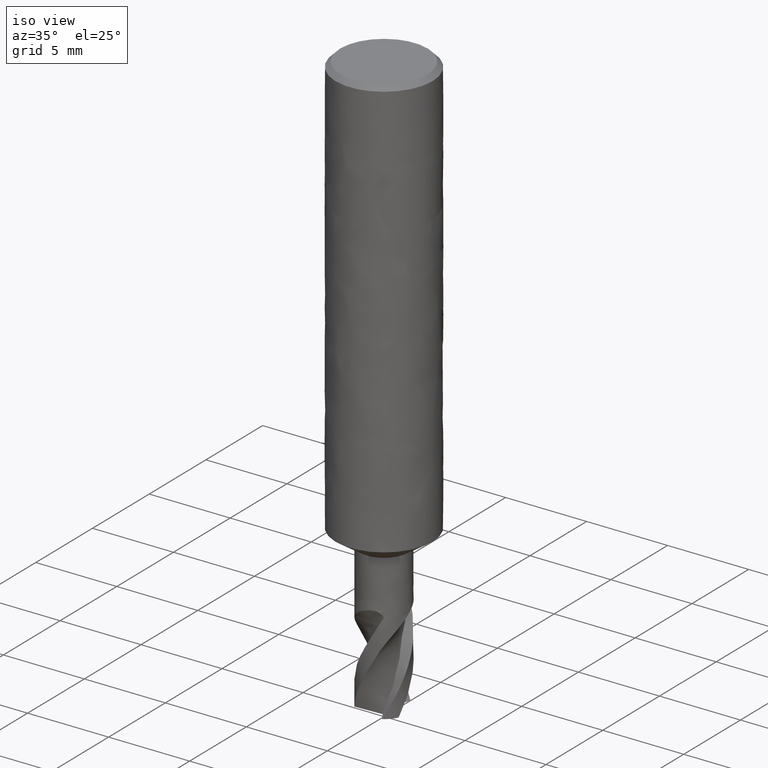
[diagram: clean part render]
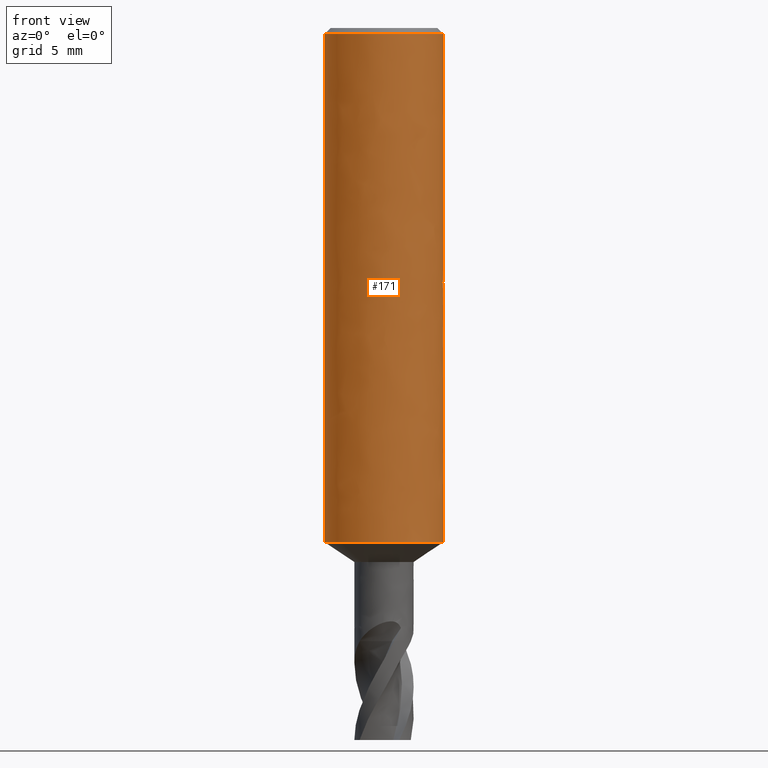
[diagram: tour spotlight — one face highlighted and labeled with its STEP entity id]
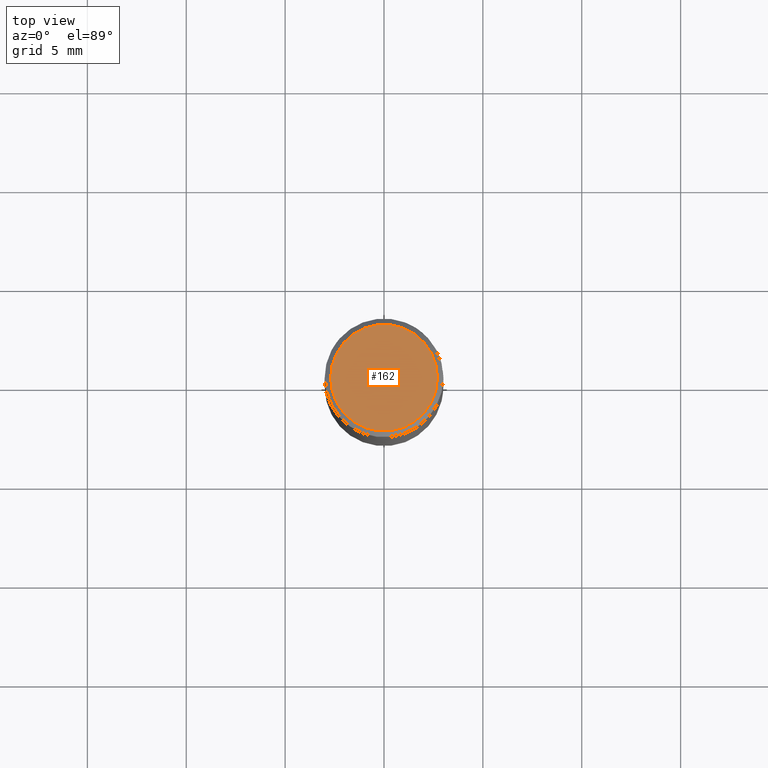
[diagram: tour spotlight — one face highlighted and labeled with its STEP entity id]
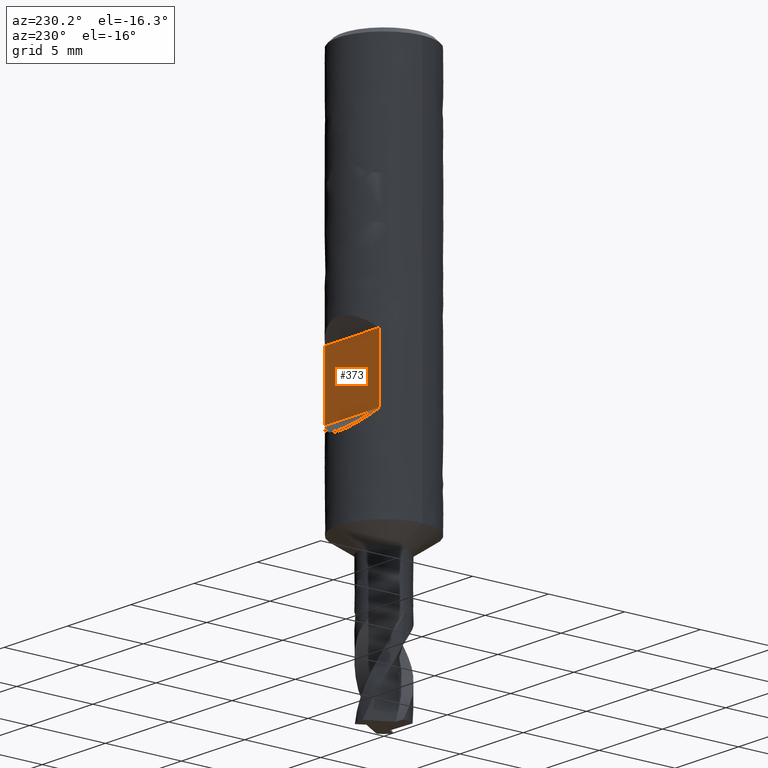
[diagram: tour spotlight — one face highlighted and labeled with its STEP entity id]
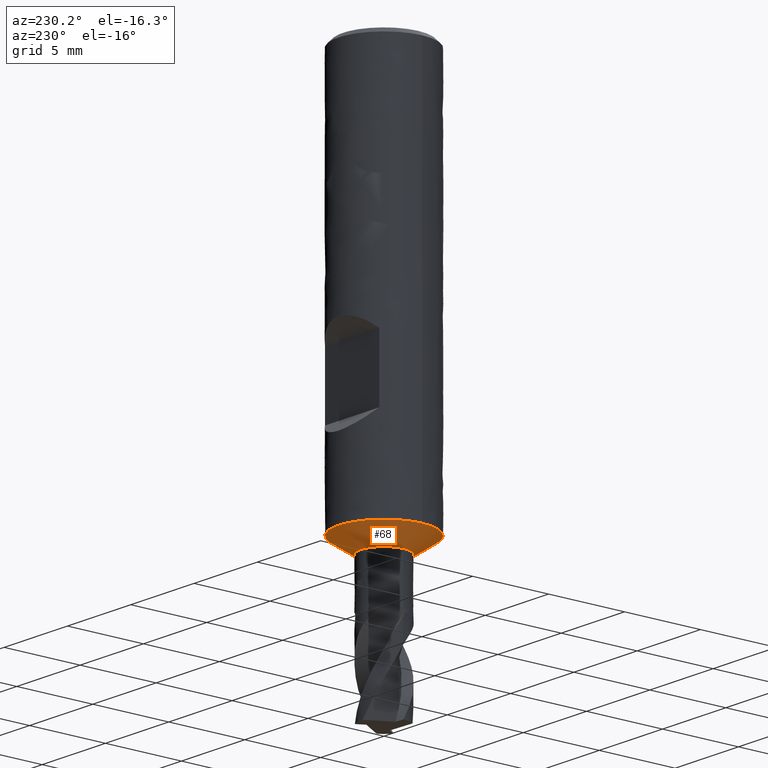
[diagram: tour spotlight — one face highlighted and labeled with its STEP entity id]
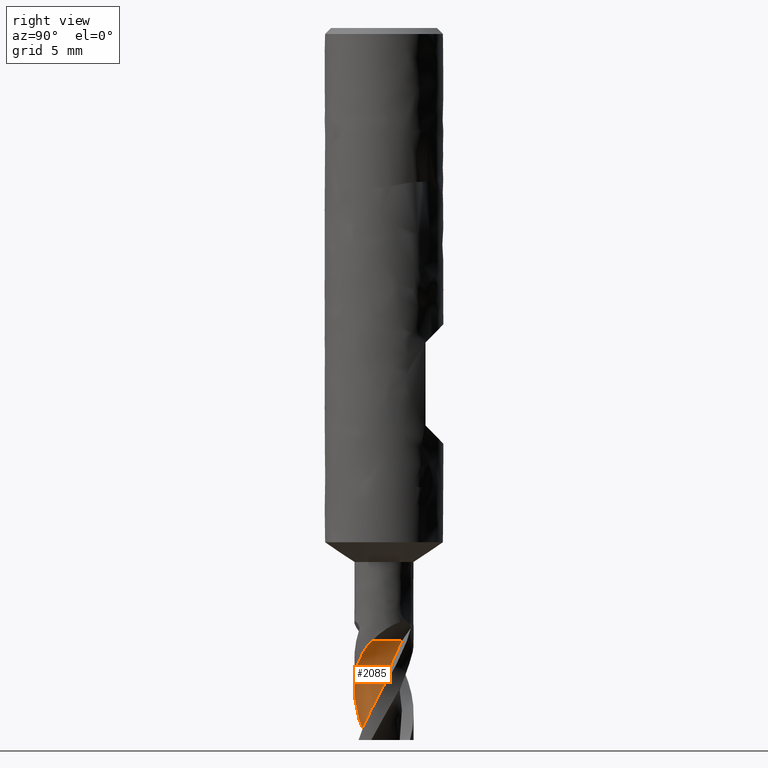
[diagram: tour spotlight — one face highlighted and labeled with its STEP entity id]
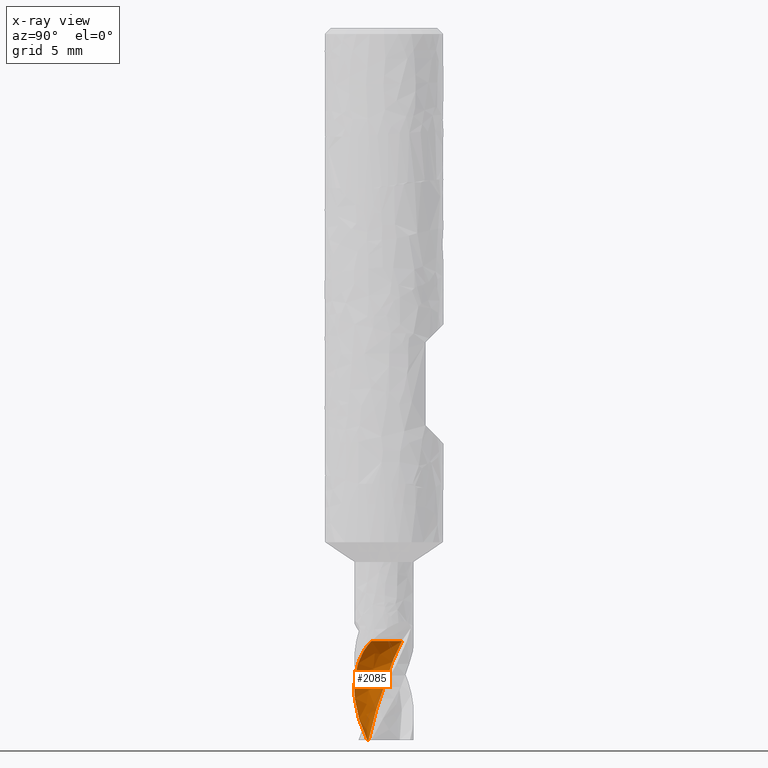
[diagram: x-ray of the same camera — body ghosted, this tour face saturated]
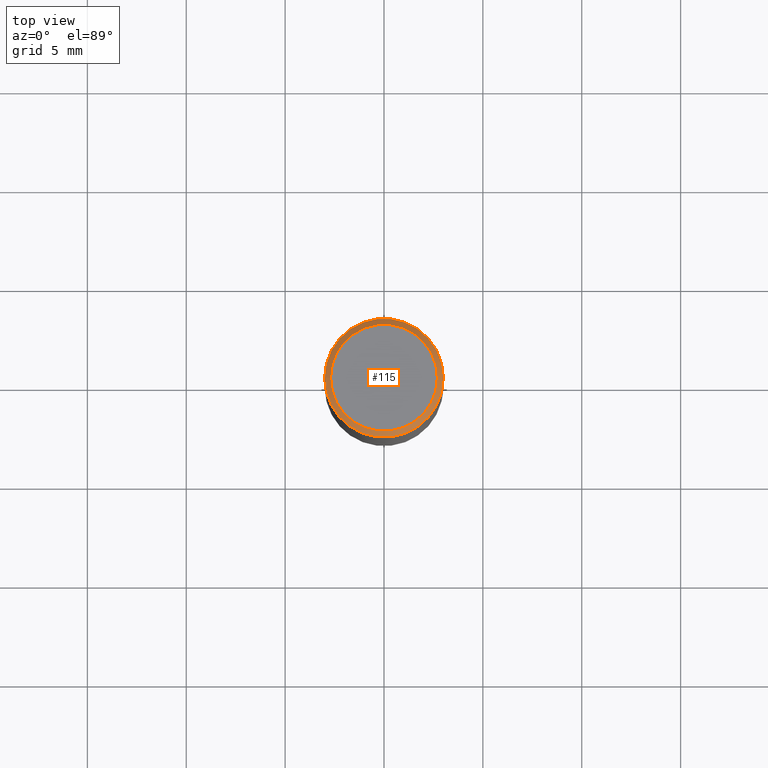
[diagram: tour spotlight — one face highlighted and labeled with its STEP entity id]
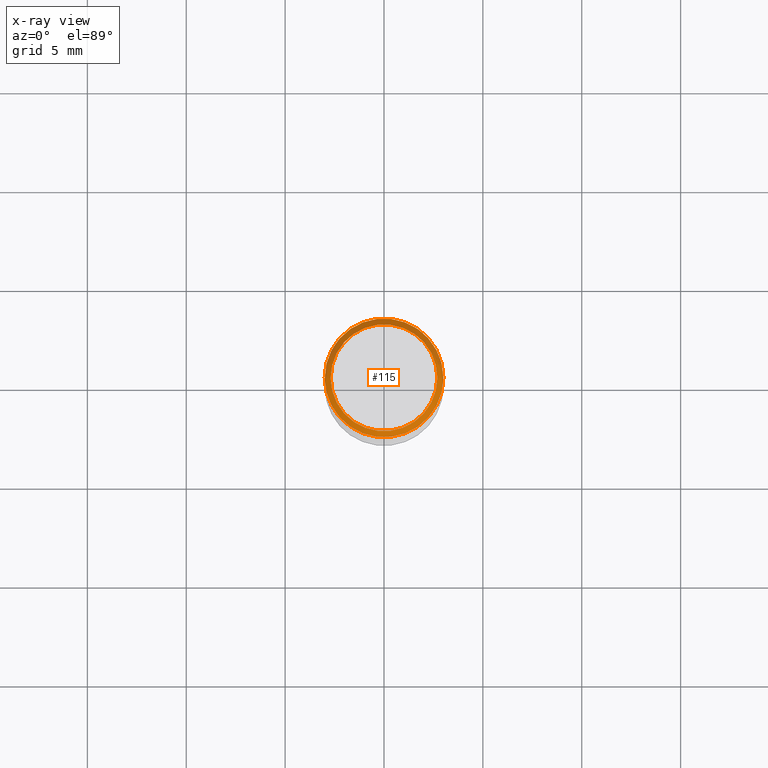
[diagram: x-ray of the same camera — body ghosted, this tour face saturated]
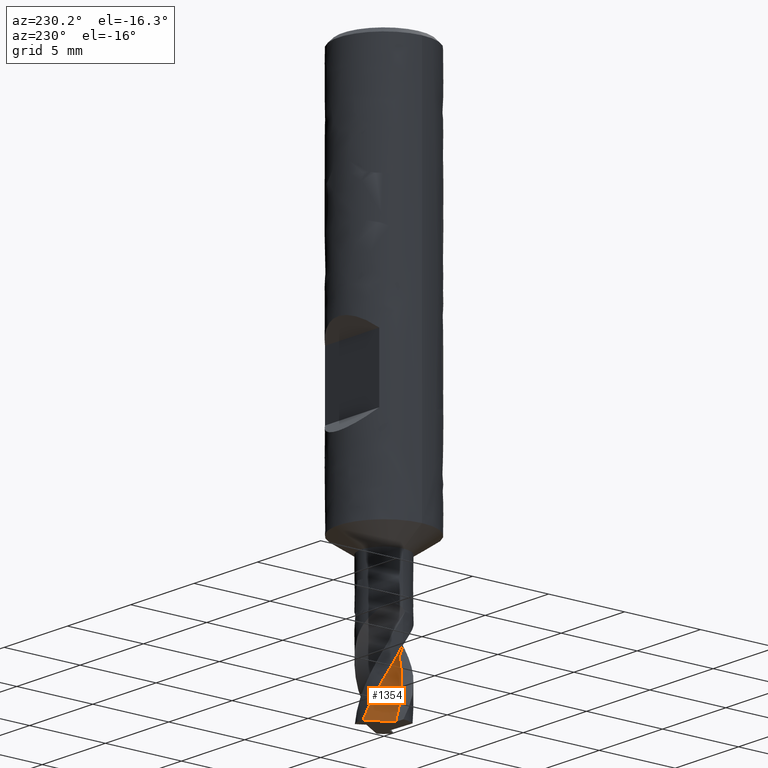
[diagram: tour spotlight — one face highlighted and labeled with its STEP entity id]
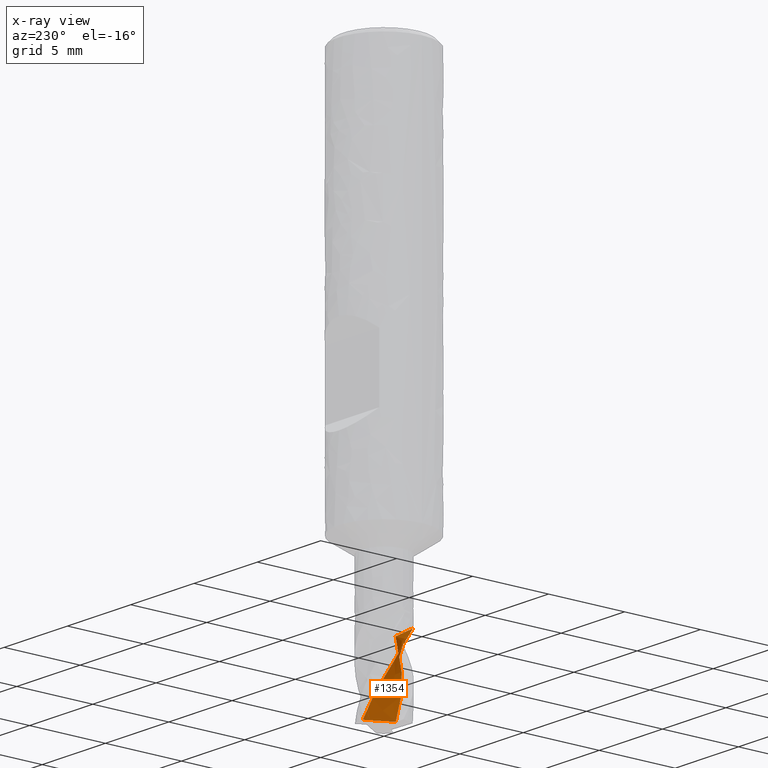
[diagram: x-ray of the same camera — body ghosted, this tour face saturated]
A machine part: a face-by-face anatomy tour. The part has 28 B-rep faces; the first image is the clean iso view, then the 7 largest visible faces are spotlighted one at a time (largest first), each with its STEP entity span.

Face 1 — front view, entity #171. In plain terms, the highlighted face is a freeform B-spline surface patch.
Definition (entity closure, byte-faithful):
#73 = VERTEX_POINT('', #74);
#74 = CARTESIAN_POINT('', (-3., 1.77573785876366E-15, -26.));
#82 = EDGE_CURVE('', #73, #73, #83, .T.);
#83 = CIRCLE('', #84, 3.);
#84 = AXIS2_PLACEMENT_3D('', #85, #86, #87);
#85 = CARTESIAN_POINT('', (9.74843858730207E-32, 1.59204083889156E-15, -26.));
#86 = DIRECTION('', (3.74939945665464E-33, 6.12323399573677E-17, -1.));
#87 = DIRECTION('', (-1., 6.12323399573677E-17, 0.));
#120 = VERTEX_POINT('', #121);
#121 = CARTESIAN_POINT('', (-3., 2.02066721859313E-16, -0.300000000000001));
#137 = EDGE_CURVE('', #120, #120, #138, .T.);
#138 = CIRCLE('', #139, 3.);
#139 = AXIS2_PLACEMENT_3D('', #140, #141, #142);
#140 = CARTESIAN_POINT('', (1.1248198369964E-33, 1.83697019872102E-17, -0.300000000000001));
#141 = DIRECTION('', (3.74939945665464E-33, 6.12323399573677E-17, -1.));
#142 = DIRECTION('', (-1., 6.12323399573677E-17, 0.));
#171 = ADVANCED_FACE('', (#172, #183), #354, .T.);
#172 = FACE_OUTER_BOUND('', #173, .T.);
#173 = EDGE_LOOP('', (#174, #180, #181, #182));
#174 = ORIENTED_EDGE('', *, *, #175, .T.);
#175 = EDGE_CURVE('', #73, #120, #176, .T.);
#176 = LINE('', #177, #178);
#177 = CARTESIAN_POINT('', (-3., 1.77573785876366E-15, -26.));
#178 = VECTOR('', #179, 25.7);
#179 = DIRECTION('', (0., -1.57367113690435E-15, 25.7));
#180 = ORIENTED_EDGE('', *, *, #137, .T.);
#181 = ORIENTED_EDGE('', *, *, #175, .F.);
#182 = ORIENTED_EDGE('', *, *, #82, .F.);
#183 = FACE_BOUND('', #184, .T.);
#184 = EDGE_LOOP('', (#185, #265, #273, #348));
#185 = ORIENTED_EDGE('', *, *, #186, .F.);
#186 = EDGE_CURVE('', #187, #189, #191, .T.);
#187 = VERTEX_POINT('', #188);
#188 = CARTESIAN_POINT('', (-2.14242852856286, 2.1, -15.9));
#189 = VERTEX_POINT('', #190);
#190 = CARTESIAN_POINT('', (2.14242852856286, 2.1, -15.9));
#191 = B_SPLINE_CURVE_WITH_KNOTS('', 3, (#192, #193, #194, #195, #196, #197, #198, #199, #200, #201, #202, #203, #204, #205, #206, #207, #208, #209, #210, #211, #212, #213, #214, #215, #216, #217, #218, #219, #220, #221, #222, #223, #224, #225, #226, #227, #228, #229, #230, #231, #232, #233, #234, #235, #236, #237, #238, #239, #240, #241, #242, #243, #244, #245, #246, #247, #248, #249, #250, #251, #252, #253, #254, #255, #256, #257, #258, #259, #260, #261, #262, #263, #264), .UNSPECIFIED., .F., .U., (4, 3, 3, 3, 3, 3, 3, 3, 3, 3, 3, 3, 3, 3, 3, 3, 3, 3, 3, 3, 3, 3, 3, 3, 4), (0., 0.226532141220095, 0.522486989651004, 0.818712617000355, 1.01613164123477, 1.21365653787484, 1.41130126070876, 1.60907935009335, 1.8070024900134, 2.00507870652317, 2.20331049885991, 2.40169339368013, 2.59896230886552, 2.79623122405091, 2.99461411887113, 3.19284591120787, 3.39092212771764, 3.58884526763769, 3.78662335702228, 3.98426807985621, 4.18179297649628, 4.37921200073069, 4.67543762808004, 4.97139247651095, 5.19792461773106), .UNSPECIFIED.);
#192 = CARTESIAN_POINT('', (-2.14242852856286, 2.1, -15.9));
#193 = CARTESIAN_POINT('', (-2.09966946167759, 2.14362297369034, -15.8556089394693));
#194 = CARTESIAN_POINT('', (-2.05511554936736, 2.1864112283916, -15.8120672951529));
#195 = CARTESIAN_POINT('', (-2.0087677833036, 2.22819478339795, -15.7695480406738));
#196 = CARTESIAN_POINT('', (-1.94821634893923, 2.28278326528932, -15.71399839793));
#197 = CARTESIAN_POINT('', (-1.88451279376245, 2.33573606973674, -15.6601132326456));
#198 = CARTESIAN_POINT('', (-1.81770907332824, 2.38661553768947, -15.6083379099064));
#199 = CARTESIAN_POINT('', (-1.75084423195189, 2.43754155695695, -15.5565152162052));
#200 = CARTESIAN_POINT('', (-1.68074368663281, 2.48648668451198, -15.5067082925553));
#201 = CARTESIAN_POINT('', (-1.60754910566601, 2.5329401636976, -15.4594368887067));
#202 = CARTESIAN_POINT('', (-1.55876871187291, 2.56389899941746, -15.4279329486004));
#203 = CARTESIAN_POINT('', (-1.50855619382241, 2.59378846644903, -15.3975172059771));
#204 = CARTESIAN_POINT('', (-1.45698599487322, 2.6224400490275, -15.3683611437249));
#205 = CARTESIAN_POINT('', (-1.40538813971895, 2.65110699695378, -15.3391894455812));
#206 = CARTESIAN_POINT('', (-1.35237136818211, 2.67856731294511, -15.311245625015));
#207 = CARTESIAN_POINT('', (-1.2980449081672, 2.70464034880449, -15.2847135109673));
#208 = CARTESIAN_POINT('', (-1.24368549163369, 2.7307292015695, -15.2581653015195));
#209 = CARTESIAN_POINT('', (-1.1879435465153, 2.75546251726231, -15.2329964966177));
#210 = CARTESIAN_POINT('', (-1.13097137564118, 2.77865142604832, -15.2093992916021));
#211 = CARTESIAN_POINT('', (-1.07396076113039, 2.80185598222798, -15.1857861636831));
#212 = CARTESIAN_POINT('', (-1.01563414958426, 2.82354738172838, -15.1637128351876));
#213 = CARTESIAN_POINT('', (-0.956194799697475, 2.84353503671602, -15.143373249704));
#214 = CARTESIAN_POINT('', (-0.896711856966026, 2.86353735065839, -15.1230187471597));
#215 = CARTESIAN_POINT('', (-0.836016614422429, 2.88186535336629, -15.1043680361057));
#216 = CARTESIAN_POINT('', (-0.774369168024398, 2.89833614192924, -15.087607239896));
#217 = CARTESIAN_POINT('', (-0.712674042608828, 2.91481966923584, -15.0708334806465));
#218 = CARTESIAN_POINT('', (-0.649913305064568, 2.92947198918526, -15.0559231715418));
#219 = CARTESIAN_POINT('', (-0.586405693294031, 2.94212990244693, -15.0430423854271));
#220 = CARTESIAN_POINT('', (-0.522848200475711, 2.95479775766609, -15.030151482303));
#221 = CARTESIAN_POINT('', (-0.458417641638564, 2.96549204170255, -15.0192688998049));
#222 = CARTESIAN_POINT('', (-0.393487032405319, 2.97408270821927, -15.010526974047));
#223 = CARTESIAN_POINT('', (-0.328506929716998, 2.98267992298454, -15.0017783847429));
#224 = CARTESIAN_POINT('', (-0.262890170542849, 2.98918754384691, -14.9951561816426));
#225 = CARTESIAN_POINT('', (-0.197052250671397, 2.99352140638837, -14.9907460110803));
#226 = CARTESIAN_POINT('', (-0.131584030526338, 2.99783093298788, -14.9863606049525));
#227 = CARTESIAN_POINT('', (-0.0657563050618007, 3., -14.9841533463251));
#228 = CARTESIAN_POINT('', (-3.46086516886445E-15, 3., -14.9841533463251));
#229 = CARTESIAN_POINT('', (0.0657563050617912, 3., -14.9841533463251));
#230 = CARTESIAN_POINT('', (0.131584030526326, 2.99783093298788, -14.9863606049525));
#231 = CARTESIAN_POINT('', (0.197052250671382, 2.99352140638837, -14.9907460110803));
#232 = CARTESIAN_POINT('', (0.262890170542835, 2.98918754384691, -14.9951561816426));
#233 = CARTESIAN_POINT('', (0.328506929716983, 2.98267992298454, -15.0017783847429));
#234 = CARTESIAN_POINT('', (0.393487032405305, 2.97408270821927, -15.010526974047));
#235 = CARTESIAN_POINT('', (0.45841764163855, 2.96549204170255, -15.0192688998049));
#236 = CARTESIAN_POINT('', (0.522848200475697, 2.95479775766609, -15.030151482303));
#237 = CARTESIAN_POINT('', (0.586405693294018, 2.94212990244693, -15.0430423854271));
#238 = CARTESIAN_POINT('', (0.649913305064555, 2.92947198918526, -15.0559231715418));
#239 = CARTESIAN_POINT('', (0.712674042608815, 2.91481966923585, -15.0708334806465));
#240 = CARTESIAN_POINT('', (0.774369168024384, 2.89833614192924, -15.087607239896));
#241 = CARTESIAN_POINT('', (0.836016614422415, 2.88186535336629, -15.1043680361057));
#242 = CARTESIAN_POINT('', (0.896711856966013, 2.86353735065839, -15.1230187471597));
#243 = CARTESIAN_POINT('', (0.956194799697462, 2.84353503671602, -15.143373249704));
#244 = CARTESIAN_POINT('', (1.01563414958425, 2.82354738172838, -15.1637128351876));
#245 = CARTESIAN_POINT('', (1.07396076113038, 2.80185598222798, -15.1857861636831));
#246 = CARTESIAN_POINT('', (1.13097137564117, 2.77865142604833, -15.2093992916021));
#247 = CARTESIAN_POINT('', (1.18794354651528, 2.75546251726231, -15.2329964966177));
#248 = CARTESIAN_POINT('', (1.24368549163367, 2.73072920156951, -15.2581653015195));
#249 = CARTESIAN_POINT('', (1.29804490816718, 2.7046403488045, -15.2847135109673));
#250 = CARTESIAN_POINT('', (1.3523713681821, 2.67856731294512, -15.311245625015));
#251 = CARTESIAN_POINT('', (1.40538813971894, 2.65110699695379, -15.3391894455811));
#252 = CARTESIAN_POINT('', (1.45698599487321, 2.6224400490275, -15.3683611437249));
#253 = CARTESIAN_POINT('', (1.5085561938224, 2.59378846644904, -15.3975172059771));
#254 = CARTESIAN_POINT('', (1.5587687118729, 2.56389899941747, -15.4279329486004));
#255 = CARTESIAN_POINT('', (1.60754910566601, 2.53294016369761, -15.4594368887067));
#256 = CARTESIAN_POINT('', (1.6807436866328, 2.48648668451198, -15.5067082925553));
#257 = CARTESIAN_POINT('', (1.75084423195188, 2.43754155695696, -15.5565152162052));
#258 = CARTESIAN_POINT('', (1.81770907332823, 2.38661553768948, -15.6083379099064));
#259 = CARTESIAN_POINT('', (1.88451279376244, 2.33573606973675, -15.6601132326456));
#260 = CARTESIAN_POINT('', (1.94821634893922, 2.28278326528933, -15.71399839793));
#261 = CARTESIAN_POINT('', (2.00876778330359, 2.22819478339795, -15.7695480406737));
#262 = CARTESIAN_POINT('', (2.05511554936735, 2.1864112283916, -15.8120672951529));
#263 = CARTESIAN_POINT('', (2.09966946167759, 2.14362297369035, -15.8556089394693));
#264 = CARTESIAN_POINT('', (2.14242852856286, 2.1, -15.9));
#265 = ORIENTED_EDGE('', *, *, #266, .T.);
#266 = EDGE_CURVE('', #187, #267, #269, .T.);
#267 = VERTEX_POINT('', #268);
#268 = CARTESIAN_POINT('', (-2.14242852856286, 2.1, -20.1));
#269 = LINE('', #270, #271);
#270 = CARTESIAN_POINT('', (-2.14242852856286, 2.1, -15.9));
#271 = VECTOR('', #272, 4.2);
#272 = DIRECTION('', (-4.44089209850063E-16, -4.44089209850063E-16, -4.2));
#273 = ORIENTED_EDGE('', *, *, #274, .T.);
#274 = EDGE_CURVE('', #267, #275, #277, .T.);
#275 = VERTEX_POINT('', #276);
#276 = CARTESIAN_POINT('', (2.14242852856285, 2.1, -20.1));
#277 = B_SPLINE_CURVE_WITH_KNOTS('', 3, (#278, #279, #280, #281, #282, #283, #284, #285, #286, #287, #288, #289, #290, #291, #292, #293, #294, #295, #296, #297, #298, #299, #300, #301, #302, #303, #304, #305, #306, #307, #308, #309, #310, #311, #312, #313, #314, #315, #316, #317, #318, #319, #320, #321, #322, #323, #324, #325, #326, #327, #328, #329, #330, #331, #332, #333, #334, #335, #336, #337, #338, #339, #340, #341, #342, #343, #344, #345, #346, #347), .UNSPECIFIED., .F., .U., (4, 3, 3, 3, 3, 3, 3, 3, 3, 3, 3, 3, 3, 3, 3, 3, 3, 3, 3, 3, 3, 3, 3, 4), (0., 0.295660747419768, 0.591176839852674, 0.886518626925895, 1.18164841836716, 1.47652016794506, 1.67307726230278, 1.86952243409268, 2.06584587187348, 2.26204020012183, 2.39294997035299, 2.5987955185311, 2.79606443371649, 2.99444732853671, 3.19267912087346, 3.39075533738323, 3.58867847730327, 3.78645656668787, 3.98410128952179, 4.18162618616186, 4.37904521039627, 4.67527083774562, 4.97122568617653, 5.19775782739663), .UNSPECIFIED.);
#278 = CARTESIAN_POINT('', (-2.14242852856286, 2.1, -20.1));
#279 = CARTESIAN_POINT('', (-2.08662109388194, 2.15693497150777, -20.157937447925));
#280 = CARTESIAN_POINT('', (-2.02774367313634, 2.21245994000831, -20.2144400663657));
#281 = CARTESIAN_POINT('', (-1.96580397010841, 2.26618947820047, -20.269115641651));
#282 = CARTESIAN_POINT('', (-1.90389457170158, 2.31989272867703, -20.3237644663626));
#283 = CARTESIAN_POINT('', (-1.8388216153995, 2.37189080900499, -20.3766780973248));
#284 = CARTESIAN_POINT('', (-1.77065397516674, 2.42173171516323, -20.4273965719039));
#285 = CARTESIAN_POINT('', (-1.70252654250763, 2.47154322347377, -20.4780851310158));
#286 = CARTESIAN_POINT('', (-1.63117078258686, 2.51929762113425, -20.5266803591222));
#287 = CARTESIAN_POINT('', (-1.55675381487312, 2.56447217958794, -20.572650323779));
#288 = CARTESIAN_POINT('', (-1.48239026348173, 2.60961431185107, -20.6185872913044));
#289 = CARTESIAN_POINT('', (-1.40478985624159, 2.6522855246488, -20.6620098329141));
#290 = CARTESIAN_POINT('', (-1.32426732289553, 2.69189822569709, -20.7023200103564));
#291 = CARTESIAN_POINT('', (-1.24381519309784, 2.73147629203384, -20.7425949432603));
#292 = CARTESIAN_POINT('', (-1.16021288035591, 2.76811040114363, -20.7798740835253));
#293 = CARTESIAN_POINT('', (-1.07398043712975, 2.80117225829876, -20.8135180737918));
#294 = CARTESIAN_POINT('', (-1.01649918128153, 2.82321079737816, -20.8359446540893));
#295 = CARTESIAN_POINT('', (-0.957748596561568, 2.84370285567261, -20.856797524107));
#296 = CARTESIAN_POINT('', (-0.897945836518629, 2.86246279882885, -20.8758877809545));
#297 = CARTESIAN_POINT('', (-0.838177129067324, 2.88121205979111, -20.8949671675225));
#298 = CARTESIAN_POINT('', (-0.777257254947386, 2.89826163823775, -20.9123169445968));
#299 = CARTESIAN_POINT('', (-0.715458762567487, 2.91343761887321, -20.9277601346871));
#300 = CARTESIAN_POINT('', (-0.653698565749474, 2.92860419519017, -20.9431937548733));
#301 = CARTESIAN_POINT('', (-0.5909476803555, 2.94192632660259, -20.9567504542887));
#302 = CARTESIAN_POINT('', (-0.527533495262698, 2.9532538684265, -20.9682774445929));
#303 = CARTESIAN_POINT('', (-0.464161013676519, 2.96457396084119, -20.9797968543232));
#304 = CARTESIAN_POINT('', (-0.400001379736571, 2.97392352783086, -20.989311042813));
#305 = CARTESIAN_POINT('', (-0.335429955765132, 2.98118881400953, -20.9967042517405));
#306 = CARTESIAN_POINT('', (-0.292344967778632, 2.9860365430586, -21.0016373366599));
#307 = CARTESIAN_POINT('', (-0.249027925527354, 2.98996321515988, -21.0056331472199));
#308 = CARTESIAN_POINT('', (-0.205599414331939, 2.99294652154468, -21.0086689818526));
#309 = CARTESIAN_POINT('', (-0.13731141964832, 2.99763754145158, -21.0134425983904));
#310 = CARTESIAN_POINT('', (-0.0686151827260331, 3., -21.0158466536749));
#311 = CARTESIAN_POINT('', (3.42251758381152E-15, 3., -21.0158466536749));
#312 = CARTESIAN_POINT('', (0.0657563050618005, 3., -21.0158466536749));
#313 = CARTESIAN_POINT('', (0.131584030526337, 2.99783093298788, -21.0136393950475));
#314 = CARTESIAN_POINT('', (0.197052250671396, 2.99352140638837, -21.0092539889197));
#315 = CARTESIAN_POINT('', (0.262890170542849, 2.98918754384691, -21.0048438183574));
#316 = CARTESIAN_POINT('', (0.328506929716997, 2.98267992298454, -20.9982216152571));
#317 = CARTESIAN_POINT('', (0.393487032405319, 2.97408270821927, -20.989473025953));
#318 = CARTESIAN_POINT('', (0.458417641638564, 2.96549204170255, -20.9807311001951));
#319 = CARTESIAN_POINT('', (0.522848200475711, 2.95479775766609, -20.969848517697));
#320 = CARTESIAN_POINT('', (0.586405693294031, 2.94212990244693, -20.9569576145729));
#321 = CARTESIAN_POINT('', (0.649913305064568, 2.92947198918526, -20.9440768284582));
#322 = CARTESIAN_POINT('', (0.712674042608828, 2.91481966923584, -20.9291665193535));
#323 = CARTESIAN_POINT('', (0.774369168024397, 2.89833614192924, -20.912392760104));
#324 = CARTESIAN_POINT('', (0.836016614422428, 2.88186535336629, -20.8956319638943));
#325 = CARTESIAN_POINT('', (0.896711856966027, 2.86353735065839, -20.8769812528403));
#326 = CARTESIAN_POINT('', (0.956194799697476, 2.84353503671602, -20.856626750296));
#327 = CARTESIAN_POINT('', (1.01563414958426, 2.82354738172838, -20.8362871648124));
#328 = CARTESIAN_POINT('', (1.07396076113039, 2.80185598222798, -20.8142138363169));
#329 = CARTESIAN_POINT('', (1.13097137564118, 2.77865142604832, -20.7906007083979));
#330 = CARTESIAN_POINT('', (1.1879435465153, 2.75546251726231, -20.7670035033823));
#331 = CARTESIAN_POINT('', (1.24368549163369, 2.7307292015695, -20.7418346984805));
#332 = CARTESIAN_POINT('', (1.2980449081672, 2.70464034880449, -20.7152864890327));
#333 = CARTESIAN_POINT('', (1.35237136818211, 2.67856731294511, -20.688754374985));
#334 = CARTESIAN_POINT('', (1.40538813971895, 2.65110699695378, -20.6608105544188));
#335 = CARTESIAN_POINT('', (1.45698599487322, 2.6224400490275, -20.6316388562751));
#336 = CARTESIAN_POINT('', (1.50855619382241, 2.59378846644903, -20.6024827940229));
#337 = CARTESIAN_POINT('', (1.55876871187291, 2.56389899941746, -20.5720670513996));
#338 = CARTESIAN_POINT('', (1.60754910566601, 2.53294016369761, -20.5405631112933));
#339 = CARTESIAN_POINT('', (1.68074368663281, 2.48648668451198, -20.4932917074447));
#340 = CARTESIAN_POINT('', (1.75084423195189, 2.43754155695695, -20.4434847837948));
#341 = CARTESIAN_POINT('', (1.81770907332824, 2.38661553768947, -20.3916620900936));
#342 = CARTESIAN_POINT('', (1.88451279376245, 2.33573606973674, -20.3398867673544));
#343 = CARTESIAN_POINT('', (1.94821634893922, 2.28278326528932, -20.28600160207));
#344 = CARTESIAN_POINT('', (2.0087677833036, 2.22819478339795, -20.2304519593262));
#345 = CARTESIAN_POINT('', (2.05511554936736, 2.1864112283916, -20.1879327048471));
#346 = CARTESIAN_POINT('', (2.09966946167759, 2.14362297369034, -20.1443910605307));
#347 = CARTESIAN_POINT('', (2.14242852856285, 2.1, -20.1));
#348 = ORIENTED_EDGE('', *, *, #349, .F.);
#349 = EDGE_CURVE('', #189, #275, #350, .T.);
#350 = LINE('', #351, #352);
#351 = CARTESIAN_POINT('', (2.14242852856286, 2.1, -15.9));
#352 = VECTOR('', #353, 4.2);
#353 = DIRECTION('', (-8.88178419700125E-16, 4.44089209850063E-16, -4.2));
#354 = (
   BOUNDED_SURFACE ()
   B_SPLINE_SURFACE (1, 2, ((#355, #356, #357, #358, #359, #360, #361, #362, #363), (#364, #365, #366, #367, #368, #369, #370, #371, #372)), .UNSPECIFIED., .F., .T., .U.)
   B_SPLINE_SURFACE_WITH_KNOTS ((2, 2), (3, 2, 2, 2, 3), (0., 1.), (0., 4.71238898038469, 9.42477796076938, 14.1371669411541, 18.8495559215388), .UNSPECIFIED.)
   GEOMETRIC_REPRESENTATION_ITEM ()
   RATIONAL_B_SPLINE_SURFACE (((1., 0.707106781186548, 1., 0.707106781186548, 1., 0.707106781186548, 1., 0.707106781186548, 1.), (1., 0.707106781186548, 1., 0.707106781186548, 1., 0.707106781186548, 1., 0.707106781186548, 1.)))
   REPRESENTATION_ITEM ('')
   SURFACE ()
);
#355 = CARTESIAN_POINT('', (-3., 1.77573785876366E-15, -26.));
#356 = CARTESIAN_POINT('', (-3., 3., -26.));
#357 = CARTESIAN_POINT('', (9.86076131526265E-32, 3., -26.));
#358 = CARTESIAN_POINT('', (3., 3., -26.));
#359 = CARTESIAN_POINT('', (3., 1.77573785876366E-15, -26.));
#360 = CARTESIAN_POINT('', (3., -3., -26.));
#361 = CARTESIAN_POINT('', (3.67394039744206E-16, -3., -26.));
#362 = CARTESIAN_POINT('', (-3., -3., -26.));
#363 = CARTESIAN_POINT('', (-3., 1.77573785876366E-15, -26.));
#364 = CARTESIAN_POINT('', (-3., 2.02066721859313E-16, -0.300000000000001));
#365 = CARTESIAN_POINT('', (-3., 3., -0.300000000000001));
#366 = CARTESIAN_POINT('', (0., 3., -0.300000000000001));
#367 = CARTESIAN_POINT('', (3., 3., -0.300000000000001));
#368 = CARTESIAN_POINT('', (3., 2.02066721859313E-16, -0.300000000000001));
#369 = CARTESIAN_POINT('', (3., -3., -0.300000000000001));
#370 = CARTESIAN_POINT('', (3.67394039744206E-16, -3., -0.300000000000001));
#371 = CARTESIAN_POINT('', (-3., -3., -0.300000000000001));
#372 = CARTESIAN_POINT('', (-3., 2.02066721859313E-16, -0.300000000000001));

Face 2 — top view, entity #162. In plain terms, the highlighted planar face has unit normal (0, -0, 1).
Definition (entity closure, byte-faithful):
#122 = VERTEX_POINT('', #123);
#123 = CARTESIAN_POINT('', (-2.7, 1.65327317884893E-16, 0.));
#129 = EDGE_CURVE('', #122, #122, #130, .T.);
#130 = CIRCLE('', #131, 2.7);
#131 = AXIS2_PLACEMENT_3D('', #132, #133, #134);
#132 = CARTESIAN_POINT('', (-6.74700668366753E-80, 4.13135006948962E-96, 0.));
#133 = DIRECTION('', (3.74939945665464E-33, 6.12323399573677E-17, -1.));
#134 = DIRECTION('', (-1., 6.12323399573677E-17, 0.));
#162 = ADVANCED_FACE('', (#163), #166, .T.);
#163 = FACE_OUTER_BOUND('', #164, .T.);
#164 = EDGE_LOOP('', (#165));
#165 = ORIENTED_EDGE('', *, *, #129, .F.);
#166 = PLANE('', #167);
#167 = AXIS2_PLACEMENT_3D('', #168, #169, #170);
#168 = CARTESIAN_POINT('', (4.20021428024809, -4.20021428024809, -1.13106398578357E-14));
#169 = DIRECTION('', (1.31581988103722E-15, -1.37705222099459E-15, 1.));
#170 = DIRECTION('', (0., 1., 1.37705222099459E-15));

Face 3 — auxiliary view, entity #373. In plain terms, the highlighted planar face has unit normal (0, 1, 0).
Definition (entity closure, byte-faithful):
#187 = VERTEX_POINT('', #188);
#188 = CARTESIAN_POINT('', (-2.14242852856286, 2.1, -15.9));
#189 = VERTEX_POINT('', #190);
#190 = CARTESIAN_POINT('', (2.14242852856286, 2.1, -15.9));
#266 = EDGE_CURVE('', #187, #267, #269, .T.);
#267 = VERTEX_POINT('', #268);
#268 = CARTESIAN_POINT('', (-2.14242852856286, 2.1, -20.1));
#269 = LINE('', #270, #271);
#270 = CARTESIAN_POINT('', (-2.14242852856286, 2.1, -15.9));
#271 = VECTOR('', #272, 4.2);
#272 = DIRECTION('', (-4.44089209850063E-16, -4.44089209850063E-16, -4.2));
#275 = VERTEX_POINT('', #276);
#276 = CARTESIAN_POINT('', (2.14242852856285, 2.1, -20.1));
#349 = EDGE_CURVE('', #189, #275, #350, .T.);
#350 = LINE('', #351, #352);
#351 = CARTESIAN_POINT('', (2.14242852856286, 2.1, -15.9));
#352 = VECTOR('', #353, 4.2);
#353 = DIRECTION('', (-8.88178419700125E-16, 4.44089209850063E-16, -4.2));
#373 = ADVANCED_FACE('', (#374), #390, .T.);
#374 = FACE_OUTER_BOUND('', #375, .T.);
#375 = EDGE_LOOP('', (#376, #377, #383, #384));
#376 = ORIENTED_EDGE('', *, *, #349, .T.);
#377 = ORIENTED_EDGE('', *, *, #378, .T.);
#378 = EDGE_CURVE('', #275, #267, #379, .T.);
#379 = LINE('', #380, #381);
#380 = CARTESIAN_POINT('', (2.14242852856285, 2.1, -20.1));
#381 = VECTOR('', #382, 4.28485705712571);
#382 = DIRECTION('', (-4.28485705712571, 4.44089209850063E-16, 0.));
#383 = ORIENTED_EDGE('', *, *, #266, .F.);
#384 = ORIENTED_EDGE('', *, *, #385, .F.);
#385 = EDGE_CURVE('', #189, #187, #386, .T.);
#386 = LINE('', #387, #388);
#387 = CARTESIAN_POINT('', (2.14242852856286, 2.1, -15.9));
#388 = VECTOR('', #389, 4.28485705712571);
#389 = DIRECTION('', (-4.28485705712571, 4.44089209850063E-16, 0.));
#390 = PLANE('', #391);
#391 = AXIS2_PLACEMENT_3D('', #392, #393, #394);
#392 = CARTESIAN_POINT('', (3., 2.1, -20.1));
#393 = DIRECTION('', (0., 1., 1.05735526154777E-16));
#394 = DIRECTION('', (-1., 0., 0.));

Face 4 — auxiliary view, entity #68. In plain terms, the highlighted face is a freeform B-spline surface patch.
Definition (entity closure, byte-faithful):
#68 = ADVANCED_FACE('', (#69), #96, .T.);
#69 = FACE_OUTER_BOUND('', #70, .T.);
#70 = EDGE_LOOP('', (#71, #81, #88, #89));
#71 = ORIENTED_EDGE('', *, *, #72, .F.);
#72 = EDGE_CURVE('', #73, #75, #77, .T.);
#73 = VERTEX_POINT('', #74);
#74 = CARTESIAN_POINT('', (-3., 1.77573785876366E-15, -26.));
#75 = VERTEX_POINT('', #76);
#76 = CARTESIAN_POINT('', (-1.5, 1.74512168878498E-15, -27.));
#77 = LINE('', #78, #79);
#78 = CARTESIAN_POINT('', (-3., 1.77573785876366E-15, -26.));
#79 = VECTOR('', #80, 1.80277563773199);
#80 = DIRECTION('', (1.5, -3.06161699786838E-17, -1.));
#81 = ORIENTED_EDGE('', *, *, #82, .T.);
#82 = EDGE_CURVE('', #73, #73, #83, .T.);
#83 = CIRCLE('', #84, 3.);
#84 = AXIS2_PLACEMENT_3D('', #85, #86, #87);
#85 = CARTESIAN_POINT('', (9.74843858730207E-32, 1.59204083889156E-15, -26.));
#86 = DIRECTION('', (3.74939945665464E-33, 6.12323399573677E-17, -1.));
#87 = DIRECTION('', (-1., 6.12323399573677E-17, 0.));
#88 = ORIENTED_EDGE('', *, *, #72, .T.);
#89 = ORIENTED_EDGE('', *, *, #90, .F.);
#90 = EDGE_CURVE('', #75, #75, #91, .T.);
#91 = CIRCLE('', #92, 1.5);
#92 = AXIS2_PLACEMENT_3D('', #93, #94, #95);
#93 = CARTESIAN_POINT('', (1.01233785329675E-31, 1.65327317884893E-15, -27.));
#94 = DIRECTION('', (3.74939945665464E-33, 6.12323399573677E-17, -1.));
#95 = DIRECTION('', (-1., 6.12323399573677E-17, 0.));
#96 = (
   BOUNDED_SURFACE ()
   B_SPLINE_SURFACE (2, 1, ((#97, #98), (#99, #100), (#101, #102), (#103, #104), (#105, #106), (#107, #108), (#109, #110), (#111, #112), (#113, #114)), .UNSPECIFIED., .T., .F., .U.)
   B_SPLINE_SURFACE_WITH_KNOTS ((3, 2, 2, 2, 3), (2, 2), (0., 0.25, 0.5, 0.75, 1.), (0., 1.), .UNSPECIFIED.)
   GEOMETRIC_REPRESENTATION_ITEM ()
   RATIONAL_B_SPLINE_SURFACE (((1., 1.), (0.707106781186548, 0.707106781186548), (1., 1.), (0.707106781186548, 0.707106781186548), (1., 1.), (0.707106781186548, 0.707106781186548), (1., 1.), (0.707106781186548, 0.707106781186548), (1., 1.)))
   REPRESENTATION_ITEM ('')
   SURFACE ()
);
#97 = CARTESIAN_POINT('', (-3., 1.77573785876366E-15, -26.));
#98 = CARTESIAN_POINT('', (-1.5, 1.74512168878498E-15, -27.));
#99 = CARTESIAN_POINT('', (-3., 3., -26.));
#100 = CARTESIAN_POINT('', (-1.5, 1.5, -27.));
#101 = CARTESIAN_POINT('', (9.86076131526265E-32, 3., -26.));
#102 = CARTESIAN_POINT('', (9.86076131526265E-32, 1.5, -27.));
#103 = CARTESIAN_POINT('', (3., 3., -26.));
#104 = CARTESIAN_POINT('', (1.5, 1.5, -27.));
#105 = CARTESIAN_POINT('', (3., 1.77573785876366E-15, -26.));
#106 = CARTESIAN_POINT('', (1.5, 1.74512168878498E-15, -27.));
#107 = CARTESIAN_POINT('', (3., -3., -26.));
#108 = CARTESIAN_POINT('', (1.5, -1.5, -27.));
#109 = CARTESIAN_POINT('', (3.67394039744206E-16, -3., -26.));
#110 = CARTESIAN_POINT('', (1.83697019872103E-16, -1.5, -27.));
#111 = CARTESIAN_POINT('', (-3., -3., -26.));
#112 = CARTESIAN_POINT('', (-1.5, -1.5, -27.));
#113 = CARTESIAN_POINT('', (-3., 1.77573785876366E-15, -26.));
#114 = CARTESIAN_POINT('', (-1.5, 1.74512168878498E-15, -27.));

Face 5 — right view, entity #2085. An x-ray twin of the same camera follows (body ghosted, this face saturated) — the face is partly hidden behind the body. In plain terms, the highlighted face is a freeform B-spline surface patch.
Definition (entity closure, byte-faithful):
#1107 = VERTEX_POINT('', #1108);
#1108 = CARTESIAN_POINT('', (1.36022073999418, -0.632297033434184, -31.));
#1115 = EDGE_CURVE('', #1107, #1116, #1118, .T.);
#1116 = VERTEX_POINT('', #1117);
#1117 = CARTESIAN_POINT('', (0.750622330840352, 0.903033661847506, -31.));
#1118 = LINE('', #1119, #1120);
#1119 = CARTESIAN_POINT('', (1.3602207399942, -0.632297033434179, -31.));
#1120 = VECTOR('', #1121, 1.65192329250393);
#1121 = DIRECTION('', (-0.609598409153846, 1.53533069528168, 0.));
#2010 = EDGE_CURVE('', #2011, #1116, #2013, .T.);
#2011 = VERTEX_POINT('', #2012);
#2012 = CARTESIAN_POINT('', (0.469311728547661, -0.778240075279371, -36.));
#2013 = B_SPLINE_CURVE_WITH_KNOTS('', 3, (#2014, #2015, #2016, #2017, #2018, #2019, #2020, #2021, #2022, #2023, #2024, #2025, #2026, #2027, #2028, #2029, #2030, #2031, #2032, #2033, #2034), .UNSPECIFIED., .F., .U., (4, 1, 1, 1, 1, 1, 1, 1, 1, 1, 1, 1, 1, 1, 1, 1, 1, 1, 4), (0.0500000000000034, 0.55, 0.825, 1.1, 1.375, 1.65, 1.925, 2.2, 2.475, 2.75, 3.025, 3.3, 3.575, 3.85, 4.125, 4.4, 4.675, 4.95, 5.05), .UNSPECIFIED.);
#2014 = CARTESIAN_POINT('', (0.469311728547662, -0.77824007527937, -36.));
#2015 = CARTESIAN_POINT('', (0.518399261633595, -0.747863413763408, -35.8333333333333));
#2016 = CARTESIAN_POINT('', (0.590031174676566, -0.693784810914283, -35.575));
#2017 = CARTESIAN_POINT('', (0.675341240599906, -0.607777425517128, -35.225));
#2018 = CARTESIAN_POINT('', (0.735167713657381, -0.533777072988802, -34.95));
#2019 = CARTESIAN_POINT('', (0.787199795091738, -0.454088092713696, -34.675));
#2020 = CARTESIAN_POINT('', (0.830907777364409, -0.369497022152006, -34.4));
#2021 = CARTESIAN_POINT('', (0.86587682103869, -0.280842315365529, -34.125));
#2022 = CARTESIAN_POINT('', (0.89162453345234, -0.188978001628962, -33.85));
#2023 = CARTESIAN_POINT('', (0.908300750817427, -0.0948783554325047, -33.575));
#2024 = CARTESIAN_POINT('', (0.914090666986478, 0.000787105619893243, -33.3));
#2025 = CARTESIAN_POINT('', (0.905372296570443, 0.0960949509218717, -33.025));
#2026 = CARTESIAN_POINT('', (0.884464993586387, 0.189313399114684, -32.75));
#2027 = CARTESIAN_POINT('', (0.846946523640303, 0.27640941358627, -32.475));
#2028 = CARTESIAN_POINT('', (0.819694734022636, 0.365364372700542, -32.2));
#2029 = CARTESIAN_POINT('', (0.801401642725588, 0.46243034762928, -31.925));
#2030 = CARTESIAN_POINT('', (0.788481727437673, 0.571841154949706, -31.65));
#2031 = CARTESIAN_POINT('', (0.776644485972274, 0.697424134394736, -31.375));
#2032 = CARTESIAN_POINT('', (0.764046828254482, 0.811282771148307, -31.1583333333333));
#2033 = CARTESIAN_POINT('', (0.753663834839115, 0.883356610289379, -31.0333333333333));
#2034 = CARTESIAN_POINT('', (0.750622330840352, 0.903033661847506, -31.));
#2085 = ADVANCED_FACE('', (#2086), #2189, .T.);
#2086 = FACE_OUTER_BOUND('', #2087, .T.);
#2087 = EDGE_LOOP('', (#2088, #2089, #2182, #2188));
#2088 = ORIENTED_EDGE('', *, *, #1115, .F.);
#2089 = ORIENTED_EDGE('', *, *, #2090, .F.);
#2090 = EDGE_CURVE('', #2091, #1107, #2093, .T.);
#2091 = VERTEX_POINT('', #2092);
#2092 = CARTESIAN_POINT('', (-1.23449274922675, -0.852072562700247, -36.));
#2093 = B_SPLINE_CURVE_WITH_KNOTS('', 3, (#2094, #2095, #2096, #2097, #2098, #2099, #2100, #2101, #2102, #2103, #2104, #2105, #2106, #2107, #2108, #2109, #2110, #2111, #2112, #2113, #2114, #2115, #2116, #2117, #2118, #2119, #2120, #2121, #2122, #2123, #2124, #2125, #2126, #2127, #2128, #2129, #2130, #2131, #2132, #2133, #2134, #2135, #2136, #2137, #2138, #2139, #2140, #2141, #2142, #2143, #2144, #2145, #2146, #2147, #2148, #2149, #2150, #2151, #2152, #2153, #2154, #2155, #2156, #2157, #2158, #2159, #2160, #2161, #2162, #2163, #2164, #2165, #2166, #2167, #2168, #2169, #2170, #2171, #2172, #2173, #2174, #2175, #2176, #2177, #2178, #2179, #2180, #2181), .UNSPECIFIED., .F., .U., (4, 3, 3, 3, 3, 3, 3, 3, 3, 3, 3, 3, 3, 3, 3, 3, 3, 3, 3, 3, 3, 3, 3, 3, 3, 3, 3, 3, 3, 4), (0., 0.443551327460082, 0.886815208005312, 1.32979048099039, 1.62508757993182, 1.92029650650715, 2.21541123460587, 2.51043906458645, 2.80535690891399, 2.89287206786104, 2.93178663359982, 3.12912659365995, 3.32644144242942, 3.45792191154265, 3.58937974088454, 3.7208139609312, 3.8084230957714, 3.89604766281326, 3.98367620830002, 4.07129519907452, 4.26859639564497, 4.4000805600953, 4.59746002001388, 4.79487363237326, 4.99234125961448, 5.18987476159806, 5.38746919370108, 5.58512309232445, 5.78282244638992, 5.93182391505246), .UNSPECIFIED.);
#2094 = CARTESIAN_POINT('', (-1.23449274922675, -0.852072562700249, -36.));
#2095 = CARTESIAN_POINT('', (-1.19303983087478, -0.912130038295546, -35.8714134201064));
#2096 = CARTESIAN_POINT('', (-1.14712450131491, -0.969254419380716, -35.7427846002988));
#2097 = CARTESIAN_POINT('', (-1.09725835859125, -1.02275319334707, -35.6142894551085));
#2098 = CARTESIAN_POINT('', (-1.04742453201229, -1.07621729701357, -35.4858775822044));
#2099 = CARTESIAN_POINT('', (-0.993584738664941, -1.12612379572556, -35.3574274196058));
#2100 = CARTESIAN_POINT('', (-0.936360126938721, -1.1718488437846, -35.2291075320284));
#2101 = CARTESIAN_POINT('', (-0.879172773956775, -1.21754412042499, -35.1008711930803));
#2102 = CARTESIAN_POINT('', (-0.818530174369723, -1.25912291270886, -34.9725963144207));
#2103 = CARTESIAN_POINT('', (-0.755141652331049, -1.29605597290969, -34.8444524319561));
#2104 = CARTESIAN_POINT('', (-0.712885463767593, -1.3206763664112, -34.7590288901772));
#2105 = CARTESIAN_POINT('', (-0.669380627423743, -1.3432528506502, -34.6736002961151));
#2106 = CARTESIAN_POINT('', (-0.624856420414502, -1.36365481477785, -34.5882171268833));
#2107 = CARTESIAN_POINT('', (-0.580345507828723, -1.38405068711029, -34.5028594520979));
#2108 = CARTESIAN_POINT('', (-0.534786889579081, -1.40228655298752, -34.4174981681706));
#2109 = CARTESIAN_POINT('', (-0.488422609596375, -1.41825362838781, -34.3321837400999));
#2110 = CARTESIAN_POINT('', (-0.44207312403264, -1.43421560883995, -34.2468965350852));
#2111 = CARTESIAN_POINT('', (-0.394895394894266, -1.44791794092843, -34.1616025714923));
#2112 = CARTESIAN_POINT('', (-0.347148959734088, -1.45927639594282, -34.076348654278));
#2113 = CARTESIAN_POINT('', (-0.299416583768416, -1.47063150639906, -33.9911198405379));
#2114 = CARTESIAN_POINT('', (-0.25107288789056, -1.47965566708625, -33.9058885457293));
#2115 = CARTESIAN_POINT('', (-0.202344261833272, -1.4862896082877, -33.8207252862388));
#2116 = CARTESIAN_POINT('', (-0.15363380168853, -1.49292107637212, -33.735593775403));
#2117 = CARTESIAN_POINT('', (-0.104539056615796, -1.49715835123536, -33.650461524115));
#2118 = CARTESIAN_POINT('', (-0.0554651758842861, -1.49897418732455, -33.5652998167408));
#2119 = CARTESIAN_POINT('', (-0.0409027865444364, -1.49951302614704, -33.5400285742561));
#2120 = CARTESIAN_POINT('', (-0.026341186406192, -1.49983919531586, -33.5147514471175));
#2121 = CARTESIAN_POINT('', (-0.0117996314296986, -1.49995358884804, -33.489462727888));
#2122 = CARTESIAN_POINT('', (-0.00533357110500454, -1.50000445517431, -33.4782178242765));
#2123 = CARTESIAN_POINT('', (0.00112865298420813, -1.50001347233947, -33.4669704465807));
#2124 = CARTESIAN_POINT('', (0.00758543169413701, -1.49998082028605, -33.4557201433283));
#2125 = CARTESIAN_POINT('', (0.0403284529393835, -1.49981523820143, -33.3986686421139));
#2126 = CARTESIAN_POINT('', (0.0729318840855446, -1.49857540633824, -33.341529901001));
#2127 = CARTESIAN_POINT('', (0.105214316107934, -1.49630543261932, -33.2842612494494));
#2128 = CARTESIAN_POINT('', (0.137492640226716, -1.49403574775202, -33.2269998852701));
#2129 = CARTESIAN_POINT('', (0.169479118790942, -1.49073836927154, -33.1696054187544));
#2130 = CARTESIAN_POINT('', (0.20119085816496, -1.48644617749551, -33.1121437081932));
#2131 = CARTESIAN_POINT('', (0.222321930637684, -1.48358608160432, -33.073854179008));
#2132 = CARTESIAN_POINT('', (0.243337425631322, -1.48028275741953, -33.0355312838727));
#2133 = CARTESIAN_POINT('', (0.264222287505547, -1.47654548957536, -32.9971822840013));
#2134 = CARTESIAN_POINT('', (0.285103553191681, -1.47280886525558, -32.9588398874878));
#2135 = CARTESIAN_POINT('', (0.305842866847965, -1.46863943067573, -32.9204595466357));
#2136 = CARTESIAN_POINT('', (0.326354594489351, -1.4640671701311, -32.882008376939));
#2137 = CARTESIAN_POINT('', (0.346862638307293, -1.459495730746, -32.8435641129171));
#2138 = CARTESIAN_POINT('', (0.367145382709754, -1.45452127117127, -32.8050446019684));
#2139 = CARTESIAN_POINT('', (0.387129406072301, -1.44918281212348, -32.7664236358914));
#2140 = CARTESIAN_POINT('', (0.400450008551606, -1.44562439500509, -32.7406803445059));
#2141 = CARTESIAN_POINT('', (0.413624355059637, -1.44190912103902, -32.7148824417564));
#2142 = CARTESIAN_POINT('', (0.42673481008369, -1.43801856798264, -32.6890793915464));
#2143 = CARTESIAN_POINT('', (0.439847574492331, -1.43412732961188, -32.6632717961725));
#2144 = CARTESIAN_POINT('', (0.452901715052292, -1.43005917779365, -32.6374602880305));
#2145 = CARTESIAN_POINT('', (0.465976706948324, -1.42578599676866, -32.6116939763751));
#2146 = CARTESIAN_POINT('', (0.479052292492198, -1.42151262172713, -32.585926494844));
#2147 = CARTESIAN_POINT('', (0.492149649486556, -1.4170337241178, -32.5602028437693));
#2148 = CARTESIAN_POINT('', (0.505326343025729, -1.41231911657537, -32.5345641425715));
#2149 = CARTESIAN_POINT('', (0.518501599823999, -1.40760502309738, -32.5089282369287));
#2150 = CARTESIAN_POINT('', (0.531758767127445, -1.40265409565929, -32.4833761452602));
#2151 = CARTESIAN_POINT('', (0.545126824090271, -1.39743935312315, -32.4579377640131));
#2152 = CARTESIAN_POINT('', (0.575229129666646, -1.38569675105605, -32.400655398461));
#2153 = CARTESIAN_POINT('', (0.605871059588303, -1.37262304818153, -32.3439061973706));
#2154 = CARTESIAN_POINT('', (0.636889861714538, -1.35807632482318, -32.2877676752867));
#2155 = CARTESIAN_POINT('', (0.657561207609604, -1.34838219321369, -32.2503562109977));
#2156 = CARTESIAN_POINT('', (0.678407811237406, -1.33803004347913, -32.2132043786446));
#2157 = CARTESIAN_POINT('', (0.699371607147727, -1.3269812941848, -32.1763351124587));
#2158 = CARTESIAN_POINT('', (0.730841729286928, -1.31039529557722, -32.1209882508972));
#2159 = CARTESIAN_POINT('', (0.762581574490516, -1.29223392102826, -32.0662391043169));
#2160 = CARTESIAN_POINT('', (0.794311987336948, -1.27242621270266, -32.0121135593916));
#2161 = CARTESIAN_POINT('', (0.826047890476274, -1.25261507706204, -31.9579786491582));
#2162 = CARTESIAN_POINT('', (0.857799689226091, -1.23114145320543, -31.904430352105));
#2163 = CARTESIAN_POINT('', (0.889295015966506, -1.20795462438666, -31.8515091605816));
#2164 = CARTESIAN_POINT('', (0.920798960229959, -1.18476145135585, -31.7985734891452));
#2165 = CARTESIAN_POINT('', (0.95206945928654, -1.15983713298719, -31.7462221174588));
#2166 = CARTESIAN_POINT('', (0.982833705854242, -1.13315396422411, -31.6945096747811));
#2167 = CARTESIAN_POINT('', (1.01360821530323, -1.10646189401783, -31.6427799809525));
#2168 = CARTESIAN_POINT('', (1.04390604075372, -1.07798305501051, -31.5916486777852));
#2169 = CARTESIAN_POINT('', (1.07343547447297, -1.04772910723287, -31.54116888524));
#2170 = CARTESIAN_POINT('', (1.10297401668219, -1.01746582748555, -31.49067352197));
#2171 = CARTESIAN_POINT('', (1.13177105321237, -0.985398329939296, -31.440780102177));
#2172 = CARTESIAN_POINT('', (1.15953607441846, -0.951565075085368, -31.3915603119286));
#2173 = CARTESIAN_POINT('', (1.18730945157457, -0.917721638031887, -31.3423257088658));
#2174 = CARTESIAN_POINT('', (1.21408053377934, -0.882073369317823, -31.2937143741267));
#2175 = CARTESIAN_POINT('', (1.23954631102285, -0.844704056359178, -31.245799726185));
#2176 = CARTESIAN_POINT('', (1.26501794475677, -0.807326149395289, -31.1978740590752));
#2177 = CARTESIAN_POINT('', (1.2892140575138, -0.768181841587592, -31.1505884044868));
#2178 = CARTESIAN_POINT('', (1.31183571834059, -0.727383700728741, -31.1040421502241));
#2179 = CARTESIAN_POINT('', (1.32888514524797, -0.696635077722838, -31.0689613059863));
#2180 = CARTESIAN_POINT('', (1.34506147621417, -0.664908201771682, -31.0342568946108));
#2181 = CARTESIAN_POINT('', (1.36022073999418, -0.632297033434184, -31.));
#2182 = ORIENTED_EDGE('', *, *, #2183, .T.);
#2183 = EDGE_CURVE('', #2091, #2011, #2184, .T.);
#2184 = LINE('', #2185, #2186);
#2185 = CARTESIAN_POINT('', (-1.23449274922675, -0.852072562700247, -36.));
#2186 = VECTOR('', #2187, 1.7054034521728);
#2187 = DIRECTION('', (1.70380447777442, 0.0738324874208761, 0.));
#2188 = ORIENTED_EDGE('', *, *, #2010, .T.);
#2189 = B_SPLINE_SURFACE_WITH_KNOTS('', 3, 1, ((#2190, #2191), (#2192, #2193), (#2194, #2195), (#2196, #2197), (#2198, #2199), (#2200, #2201), (#2202, #2203), (#2204, #2205), (#2206, #2207), (#2208, #2209), (#2210, #2211), (#2212, #2213), (#2214, #2215), (#2216, #2217), (#2218, #2219), (#2220, #2221), (#2222, #2223), (#2224, #2225), (#2226, #2227), (#2228, #2229), (#2230, #2231)), .UNSPECIFIED., .F., .F., .U., (4, 1, 1, 1, 1, 1, 1, 1, 1, 1, 1, 1, 1, 1, 1, 1, 1, 1, 4), (2, 2), (0.0500000000000009, 0.55, 0.825, 1.1, 1.375, 1.65, 1.925, 2.2, 2.475, 2.75, 3.025, 3.3, 3.575, 3.85, 4.125, 4.4, 4.675, 4.95, 5.05000000000006), (0., 0.916116505379321), .UNSPECIFIED.);
#2190 = CARTESIAN_POINT('', (0.469311728547661, -0.778240075279371, -36.));
#2191 = CARTESIAN_POINT('', (-1.26772321867993, -0.853512568434414, -36.));
#2192 = CARTESIAN_POINT('', (0.518399261633595, -0.747863413763409, -35.8333333333333));
#2193 = CARTESIAN_POINT('', (-1.21258655637503, -0.933409283236904, -35.8333333333333));
#2194 = CARTESIAN_POINT('', (0.590031174676566, -0.693784810914283, -35.575));
#2195 = CARTESIAN_POINT('', (-1.11575026997641, -1.04918214043841, -35.575));
#2196 = CARTESIAN_POINT('', (0.675341240599906, -0.607777425517128, -35.225));
#2197 = CARTESIAN_POINT('', (-0.96414072371787, -1.18524979941162, -35.225));
#2198 = CARTESIAN_POINT('', (0.735167713657381, -0.533777072988802, -34.95));
#2199 = CARTESIAN_POINT('', (-0.834835205435985, -1.27952376018712, -34.95));
#2200 = CARTESIAN_POINT('', (0.787199795091738, -0.454088092713696, -34.675));
#2201 = CARTESIAN_POINT('', (-0.696629190713618, -1.36022949249286, -34.675));
#2202 = CARTESIAN_POINT('', (0.830907777364409, -0.369497022152006, -34.4));
#2203 = CARTESIAN_POINT('', (-0.550888139844104, -1.42654330517128, -34.4));
#2204 = CARTESIAN_POINT('', (0.86587682103869, -0.280842315365529, -34.125));
#2205 = CARTESIAN_POINT('', (-0.399055073951628, -1.47783878837824, -34.125));
#2206 = CARTESIAN_POINT('', (0.89162453345234, -0.188978001628962, -33.85));
#2207 = CARTESIAN_POINT('', (-0.242604840061957, -1.51337737996058, -33.85));
#2208 = CARTESIAN_POINT('', (0.908300750817427, -0.0948783554325047, -33.575));
#2209 = CARTESIAN_POINT('', (-0.0831612091156167, -1.53349246241671, -33.575));
#2210 = CARTESIAN_POINT('', (0.914090666986478, 0.000787105619893243, -33.3));
#2211 = CARTESIAN_POINT('', (0.077999100371715, -1.53519214513573, -33.3));
#2212 = CARTESIAN_POINT('', (0.905372296570443, 0.0960949509218717, -33.025));
#2213 = CARTESIAN_POINT('', (0.237341771644837, -1.51255447777044, -33.025));
#2214 = CARTESIAN_POINT('', (0.884464993586387, 0.189313399114684, -32.75));
#2215 = CARTESIAN_POINT('', (0.392152752165458, -1.46962019210403, -32.75));
#2216 = CARTESIAN_POINT('', (0.846946523640303, 0.27640941358627, -32.475));
#2217 = CARTESIAN_POINT('', (0.535287415212216, -1.39930024315661, -32.475));
#2218 = CARTESIAN_POINT('', (0.819694734022636, 0.365364372700542, -32.2));
#2219 = CARTESIAN_POINT('', (0.682405468044285, -1.34606773082751, -32.2));
#2220 = CARTESIAN_POINT('', (0.801401642725588, 0.46243034762928, -31.925));
#2221 = CARTESIAN_POINT('', (0.843897839480954, -1.30720139237705, -31.925));
#2222 = CARTESIAN_POINT('', (0.788481727437673, 0.571841154949706, -31.65));
#2223 = CARTESIAN_POINT('', (1.02657465700045, -1.27632402749692, -31.65));
#2224 = CARTESIAN_POINT('', (0.776644485972274, 0.697424134394736, -31.375));
#2225 = CARTESIAN_POINT('', (1.23650421497089, -1.2459084857944, -31.375));
#2226 = CARTESIAN_POINT('', (0.764046828254481, 0.811282771148318, -31.1583333333333));
#2227 = CARTESIAN_POINT('', (1.42667840283572, -1.21519926814938, -31.1583333333333));
#2228 = CARTESIAN_POINT('', (0.753663834839112, 0.883356610289403, -31.0333333333333));
#2229 = CARTESIAN_POINT('', (1.54685883607595, -1.19171473797255, -31.0333333333333));
#2230 = CARTESIAN_POINT('', (0.750622330840347, 0.903033661847543, -30.9999999999999));
#2231 = CARTESIAN_POINT('', (1.57965223555925, -1.18495580943087, -30.9999999999999));

Face 6 — top view, entity #115. An x-ray twin of the same camera follows (body ghosted, this face saturated) — the face is partly hidden behind the body. In plain terms, the highlighted face is a freeform B-spline surface patch.
Definition (entity closure, byte-faithful):
#115 = ADVANCED_FACE('', (#116), #143, .T.);
#116 = FACE_OUTER_BOUND('', #117, .T.);
#117 = EDGE_LOOP('', (#118, #128, #135, #136));
#118 = ORIENTED_EDGE('', *, *, #119, .T.);
#119 = EDGE_CURVE('', #120, #122, #124, .T.);
#120 = VERTEX_POINT('', #121);
#121 = CARTESIAN_POINT('', (-3., 2.02066721859313E-16, -0.300000000000001));
#122 = VERTEX_POINT('', #123);
#123 = CARTESIAN_POINT('', (-2.7, 1.65327317884893E-16, 0.));
#124 = LINE('', #125, #126);
#125 = CARTESIAN_POINT('', (-3., 2.02066721859313E-16, -0.300000000000001));
#126 = VECTOR('', #127, 0.424264068711929);
#127 = DIRECTION('', (0.3, -3.67394039744205E-17, 0.300000000000001));
#128 = ORIENTED_EDGE('', *, *, #129, .T.);
#129 = EDGE_CURVE('', #122, #122, #130, .T.);
#130 = CIRCLE('', #131, 2.7);
#131 = AXIS2_PLACEMENT_3D('', #132, #133, #134);
#132 = CARTESIAN_POINT('', (-6.74700668366753E-80, 4.13135006948962E-96, 0.));
#133 = DIRECTION('', (3.74939945665464E-33, 6.12323399573677E-17, -1.));
#134 = DIRECTION('', (-1., 6.12323399573677E-17, 0.));
#135 = ORIENTED_EDGE('', *, *, #119, .F.);
#136 = ORIENTED_EDGE('', *, *, #137, .F.);
#137 = EDGE_CURVE('', #120, #120, #138, .T.);
#138 = CIRCLE('', #139, 3.);
#139 = AXIS2_PLACEMENT_3D('', #140, #141, #142);
#140 = CARTESIAN_POINT('', (1.1248198369964E-33, 1.83697019872102E-17, -0.300000000000001));
#141 = DIRECTION('', (3.74939945665464E-33, 6.12323399573677E-17, -1.));
#142 = DIRECTION('', (-1., 6.12323399573677E-17, 0.));
#143 = (
   BOUNDED_SURFACE ()
   B_SPLINE_SURFACE (1, 2, ((#144, #145, #146, #147, #148, #149, #150, #151, #152), (#153, #154, #155, #156, #157, #158, #159, #160, #161)), .UNSPECIFIED., .F., .T., .U.)
   B_SPLINE_SURFACE_WITH_KNOTS ((2, 2), (3, 2, 2, 2, 3), (0., 1.), (0., 0.25, 0.5, 0.75, 1.), .UNSPECIFIED.)
   GEOMETRIC_REPRESENTATION_ITEM ()
   RATIONAL_B_SPLINE_SURFACE (((1., 0.707106781186548, 1., 0.707106781186548, 1., 0.707106781186548, 1., 0.707106781186548, 1.), (1., 0.707106781186548, 1., 0.707106781186548, 1., 0.707106781186548, 1., 0.707106781186548, 1.)))
   REPRESENTATION_ITEM ('')
   SURFACE ()
);
#144 = CARTESIAN_POINT('', (-3., 2.02066721859313E-16, -0.300000000000001));
#145 = CARTESIAN_POINT('', (-3., 3., -0.300000000000001));
#146 = CARTESIAN_POINT('', (0., 3., -0.300000000000001));
#147 = CARTESIAN_POINT('', (3., 3., -0.300000000000001));
#148 = CARTESIAN_POINT('', (3., 2.02066721859313E-16, -0.300000000000001));
#149 = CARTESIAN_POINT('', (3., -3., -0.300000000000001));
#150 = CARTESIAN_POINT('', (3.67394039744206E-16, -3., -0.300000000000001));
#151 = CARTESIAN_POINT('', (-3., -3., -0.300000000000001));
#152 = CARTESIAN_POINT('', (-3., 2.02066721859313E-16, -0.300000000000001));
#153 = CARTESIAN_POINT('', (-2.7, 1.65327317884893E-16, 0.));
#154 = CARTESIAN_POINT('', (-2.7, 2.7, 3.71804099668539E-15));
#155 = CARTESIAN_POINT('', (0., 2.7, 1.65327317884893E-16));
#156 = CARTESIAN_POINT('', (2.7, 2.7, 3.71804099668539E-15));
#157 = CARTESIAN_POINT('', (2.7, 1.65327317884893E-16, 2.02467570659351E-32));
#158 = CARTESIAN_POINT('', (2.7, -2.7, 3.38738636091561E-15));
#159 = CARTESIAN_POINT('', (3.30654635769785E-16, -2.7, -1.65327317884893E-16));
#160 = CARTESIAN_POINT('', (-2.7, -2.7, 3.38738636091561E-15));
#161 = CARTESIAN_POINT('', (-2.7, 1.65327317884893E-16, 0.));

Face 7 — auxiliary view, entity #1354. An x-ray twin of the same camera follows (body ghosted, this face saturated) — the face is partly hidden behind the body. In plain terms, the highlighted face is a freeform B-spline surface patch.
Definition (entity closure, byte-faithful):
#1088 = EDGE_CURVE('', #1089, #1091, #1093, .T.);
#1089 = VERTEX_POINT('', #1090);
#1090 = CARTESIAN_POINT('', (-1.22769566368865, -0.86183719887231, -31.));
#1091 = VERTEX_POINT('', #1092);
#1092 = CARTESIAN_POINT('', (0.406738926212249, -1.10157483807938, -31.));
#1093 = LINE('', #1094, #1095);
#1094 = CARTESIAN_POINT('', (-1.22769566368866, -0.861837198872347, -31.));
#1095 = VECTOR('', #1096, 1.65192329250396);
#1096 = DIRECTION('', (1.63443458990091, -0.239737639207037, 0.));
#1181 = EDGE_CURVE('', #1182, #1091, #1184, .T.);
#1182 = VERTEX_POINT('', #1183);
#1183 = CARTESIAN_POINT('', (-0.908631539708882, -0.0173158415765728, -36.));
#1184 = B_SPLINE_CURVE_WITH_KNOTS('', 3, (#1185, #1186, #1187, #1188, #1189, #1190, #1191, #1192, #1193, #1194, #1195, #1196, #1197, #1198, #1199, #1200, #1201, #1202, #1203, #1204, #1205), .UNSPECIFIED., .F., .U., (4, 1, 1, 1, 1, 1, 1, 1, 1, 1, 1, 1, 1, 1, 1, 1, 1, 1, 4), (0.0500000000000006, 0.55, 0.825, 1.1, 1.375, 1.65, 1.925, 2.2, 2.475, 2.75, 3.025, 3.3, 3.575, 3.85, 4.125, 4.4, 4.675, 4.95, 5.05), .UNSPECIFIED.);
#1185 = CARTESIAN_POINT('', (-0.908631539708882, -0.0173158415765726, -36.));
#1186 = CARTESIAN_POINT('', (-0.906868345696864, -0.0750152229960813, -35.8333333333333));
#1187 = CARTESIAN_POINT('', (-0.895850858349837, -0.164089580837535, -35.575));
#1188 = CARTESIAN_POINT('', (-0.864021310644492, -0.28097395782425, -35.225));
#1189 = CARTESIAN_POINT('', (-0.829848361994696, -0.369785379575012, -34.95));
#1190 = CARTESIAN_POINT('', (-0.786851721391954, -0.454690974046499, -34.675));
#1191 = CARTESIAN_POINT('', (-0.735447696488545, -0.534838732323637, -34.4));
#1192 = CARTESIAN_POINT('', (-0.676154990083536, -0.60945016588485, -34.125));
#1193 = CARTESIAN_POINT('', (-0.609472016893269, -0.67768049579269, -33.85));
#1194 = CARTESIAN_POINT('', (-0.536317441482553, -0.739172346768116, -33.575));
#1195 = CARTESIAN_POINT('', (-0.456363680030952, -0.792019291782496, -33.3));
#1196 = CARTESIAN_POINT('', (-0.369465479611463, -0.832122884173595, -33.025));
#1197 = CARTESIAN_POINT('', (-0.278282283883096, -0.860625852761191, -32.75));
#1198 = CARTESIAN_POINT('', (-0.184095687809284, -0.871681911912552, -32.475));
#1199 = CARTESIAN_POINT('', (-0.0934325386148844, -0.892558649362199, -32.2));
#1200 = CARTESIAN_POINT('', (-0.000224392834969585, -0.925249355049577, -31.925));
#1201 = CARTESIAN_POINT('', (0.100988103397041, -0.968765783855713, -31.65));
#1202 = CARTESIAN_POINT('', (0.215664774612076, -1.02130592175846, -31.375));
#1203 = CARTESIAN_POINT('', (0.320568075339829, -1.06732534852346, -31.1583333333333));
#1204 = CARTESIAN_POINT('', (0.388177347691953, -1.09437033202896, -31.0333333333333));
#1205 = CARTESIAN_POINT('', (0.406738926212249, -1.10157483807938, -31.));
#1354 = ADVANCED_FACE('', (#1355), #1461, .T.);
#1355 = FACE_OUTER_BOUND('', #1356, .T.);
#1356 = EDGE_LOOP('', (#1357, #1358, #1388, #1454, #1460));
#1357 = ORIENTED_EDGE('', *, *, #1088, .F.);
#1358 = ORIENTED_EDGE('', *, *, #1359, .T.);
#1359 = EDGE_CURVE('', #1089, #1360, #1362, .T.);
#1360 = VERTEX_POINT('', #1361);
#1361 = CARTESIAN_POINT('', (-1.5, 2.05668055087664E-15, -32.0881423494282));
#1362 = B_SPLINE_CURVE_WITH_KNOTS('', 3, (#1363, #1364, #1365, #1366, #1367, #1368, #1369, #1370, #1371, #1372, #1373, #1374, #1375, #1376, #1377, #1378, #1379, #1380, #1381, #1382, #1383, #1384, #1385, #1386, #1387), .UNSPECIFIED., .F., .U., (4, 3, 3, 3, 3, 3, 3, 3, 4), (2.08926978266829, 2.19846780765512, 2.39430516578832, 2.59024159407272, 2.78629204118943, 2.98247137720592, 3.17878358268548, 3.37522971807193, 3.51557504970128), .UNSPECIFIED.);
#1363 = CARTESIAN_POINT('', (-1.22769566368865, -0.86183719887231, -31.));
#1364 = CARTESIAN_POINT('', (-1.242838472374, -0.840266117253429, -31.025105693704));
#1365 = CARTESIAN_POINT('', (-1.25729956623697, -0.818455794192102, -31.0504561255635));
#1366 = CARTESIAN_POINT('', (-1.27106533364481, -0.796487864067241, -31.0760065808853));
#1367 = CARTESIAN_POINT('', (-1.29575306515052, -0.757090252253049, -31.1218291465399));
#1368 = CARTESIAN_POINT('', (-1.31825095645157, -0.717111315942275, -31.1683867604282));
#1369 = CARTESIAN_POINT('', (-1.33860300546906, -0.676861871986599, -31.2155793423535));
#1370 = CARTESIAN_POINT('', (-1.35896535017574, -0.636592066652808, -31.2627957980498));
#1371 = CARTESIAN_POINT('', (-1.37720448767873, -0.596002553863304, -31.3107034764941));
#1372 = CARTESIAN_POINT('', (-1.39339149140404, -0.555391890184606, -31.3592259547703));
#1373 = CARTESIAN_POINT('', (-1.40958791462974, -0.514757594450894, -31.4077766691248));
#1374 = CARTESIAN_POINT('', (-1.4237468148964, -0.474061149216651, -31.4569973625967));
#1375 = CARTESIAN_POINT('', (-1.43597239335947, -0.433570392796221, -31.5068137841377));
#1376 = CARTESIAN_POINT('', (-1.44820600925056, -0.393053016650497, -31.5566629563501));
#1377 = CARTESIAN_POINT('', (-1.45851573449687, -0.352701519734722, -31.6071565553441));
#1378 = CARTESIAN_POINT('', (-1.46702801709541, -0.3127759534509, -31.6582422607776));
#1379 = CARTESIAN_POINT('', (-1.4755460649414, -0.272823346151123, -31.70936256583));
#1380 = CARTESIAN_POINT('', (-1.48227261559868, -0.233261505374029, -31.7611197076006));
#1381 = CARTESIAN_POINT('', (-1.48736116774543, -0.19431097931653, -31.8134553237209));
#1382 = CARTESIAN_POINT('', (-1.49245319145073, -0.155333880075183, -31.8658266447236));
#1383 = CARTESIAN_POINT('', (-1.49590881843782, -0.116938318039475, -31.9188193545548));
#1384 = CARTESIAN_POINT('', (-1.49790036699614, -0.0793378254858161, -31.9723929947925));
#1385 = CARTESIAN_POINT('', (-1.49932317199215, -0.0524752273161498, -32.0106671521891));
#1386 = CARTESIAN_POINT('', (-1.5, -0.0260049693023194, -32.049254353202));
#1387 = CARTESIAN_POINT('', (-1.5, 2.08280982323354E-15, -32.0881423494282));
#1388 = ORIENTED_EDGE('', *, *, #1389, .F.);
#1389 = EDGE_CURVE('', #1390, #1360, #1392, .T.);
#1390 = VERTEX_POINT('', #1391);
#1391 = CARTESIAN_POINT('', (-0.120670110552751, 1.49513836296819, -36.));
#1392 = B_SPLINE_CURVE_WITH_KNOTS('', 3, (#1393, #1394, #1395, #1396, #1397, #1398, #1399, #1400, #1401, #1402, #1403, #1404, #1405, #1406, #1407, #1408, #1409, #1410, #1411, #1412, #1413, #1414, #1415, #1416, #1417, #1418, #1419, #1420, #1421, #1422, #1423, #1424, #1425, #1426, #1427, #1428, #1429, #1430, #1431, #1432, #1433, #1434, #1435, #1436, #1437, #1438, #1439, #1440, #1441, #1442, #1443, #1444, #1445, #1446, #1447, #1448, #1449, #1450, #1451, #1452, #1453), .UNSPECIFIED., .F., .U., (4, 3, 3, 3, 3, 3, 3, 3, 3, 3, 3, 3, 3, 3, 3, 3, 3, 3, 3, 3, 4), (0., 0.444663401622154, 0.889003016504776, 1.33303082987607, 1.6287943444351, 1.92447035955844, 2.22005520713324, 2.51555824280497, 2.81095995467019, 3.00789168476608, 3.13919357265407, 3.3360902672323, 3.42364070293419, 3.62049877958879, 3.75176099826033, 3.88305486059799, 4.01437827882142, 4.07274446369322, 4.26963533335835, 4.40090088937635, 4.50553107559148), .UNSPECIFIED.);
#1393 = CARTESIAN_POINT('', (-0.120670110552752, 1.49513836296819, -36.));
#1394 = CARTESIAN_POINT('', (-0.193590237763001, 1.48925310175764, -35.8710910271741));
#1395 = CARTESIAN_POINT('', (-0.266200022021859, 1.47800988325191, -35.7421394036789));
#1396 = CARTESIAN_POINT('', (-0.337637420658066, 1.46150640510789, -35.6133223325581));
#1397 = CARTESIAN_POINT('', (-0.409022801335745, 1.44501494416015, -35.4845990610603));
#1398 = CARTESIAN_POINT('', (-0.479323092583959, 1.42325015298485, -35.355837101401));
#1399 = CARTESIAN_POINT('', (-0.547681339401451, 1.3964401707454, -35.227206248072));
#1400 = CARTESIAN_POINT('', (-0.615991617944328, 1.36964900157753, -35.0986656574455));
#1401 = CARTESIAN_POINT('', (-0.682452202473821, 1.33778433555247, -34.97008615873));
#1402 = CARTESIAN_POINT('', (-0.74624451053817, 1.30119911254659, -34.8416384758859));
#1403 = CARTESIAN_POINT('', (-0.788736076757169, 1.27682997662469, -34.7560804613406));
#1404 = CARTESIAN_POINT('', (-0.830075925188945, 1.25035206134823, -34.6705172995122));
#1405 = CARTESIAN_POINT('', (-0.870035494344714, 1.22189943881661, -34.5849997987173));
#1406 = CARTESIAN_POINT('', (-0.909983241759197, 1.19345523378172, -34.4995075976388));
#1407 = CARTESIAN_POINT('', (-0.948577565638626, 1.16301887690271, -34.4140118084196));
#1408 = CARTESIAN_POINT('', (-0.985602161090083, 1.13074682403028, -34.3285629599554));
#1409 = CARTESIAN_POINT('', (-1.02261534052729, 1.09848472179231, -34.2431404584441));
#1410 = CARTESIAN_POINT('', (-1.05807780545247, 1.0643720608363, -34.1577108235263));
#1411 = CARTESIAN_POINT('', (-1.0917869396806, 1.02859189105441, -34.0723217365346));
#1412 = CARTESIAN_POINT('', (-1.12548674390265, 0.992821624499308, -33.9869562835138));
#1413 = CARTESIAN_POINT('', (-1.1574664150462, 0.955352266355034, -33.9015892678169));
#1414 = CARTESIAN_POINT('', (-1.18755889105058, 0.9163535782037, -33.8162898272919));
#1415 = CARTESIAN_POINT('', (-1.21764104877105, 0.8773682621503, -33.7310196347373));
#1416 = CARTESIAN_POINT('', (-1.24583138027679, 0.836853175400787, -33.6457471572561));
#1417 = CARTESIAN_POINT('', (-1.27190375986425, 0.795148304181796, -33.5604433967384));
#1418 = CARTESIAN_POINT('', (-1.28928510402592, 0.767345444168821, -33.5035750155893));
#1419 = CARTESIAN_POINT('', (-1.30572651287764, 0.739011552401302, -33.4466687835935));
#1420 = CARTESIAN_POINT('', (-1.32114303422647, 0.710338710134029, -33.3896659598906));
#1421 = CARTESIAN_POINT('', (-1.33142181640536, 0.691221433710496, -33.3516600054236));
#1422 = CARTESIAN_POINT('', (-1.34124678364857, 0.671952424108341, -33.3136046296466));
#1423 = CARTESIAN_POINT('', (-1.35060793695881, 0.652578118407188, -33.2754918852796));
#1424 = CARTESIAN_POINT('', (-1.36464566462499, 0.623524943211726, -33.2183390635809));
#1425 = CARTESIAN_POINT('', (-1.37765452670011, 0.594211145161942, -33.1610567822944));
#1426 = CARTESIAN_POINT('', (-1.38967000800899, 0.564639060675306, -33.1037095082256));
#1427 = CARTESIAN_POINT('', (-1.39501271132869, 0.551489785178509, -33.0782099494758));
#1428 = CARTESIAN_POINT('', (-1.40015910812798, 0.538288583778973, -33.0526952411081));
#1429 = CARTESIAN_POINT('', (-1.40511078062207, 0.525036850306366, -33.0271698043681));
#1430 = CARTESIAN_POINT('', (-1.41624466837027, 0.495240188041433, -32.969775591054));
#1431 = CARTESIAN_POINT('', (-1.42639068102894, 0.465181419176161, -32.9123163234256));
#1432 = CARTESIAN_POINT('', (-1.43549155631157, 0.435159731315069, -32.8546815024619));
#1433 = CARTESIAN_POINT('', (-1.44155989296176, 0.415141688754258, -32.8162514080456));
#1434 = CARTESIAN_POINT('', (-1.44716523426041, 0.395140252214016, -32.7777365814183));
#1435 = CARTESIAN_POINT('', (-1.45231028688109, 0.375226372499832, -32.7391181308698));
#1436 = CARTESIAN_POINT('', (-1.45745657983069, 0.355307692103721, -32.7004903704881));
#1437 = CARTESIAN_POINT('', (-1.46215754663097, 0.335438106758956, -32.6617757779154));
#1438 = CARTESIAN_POINT('', (-1.46648312677947, 0.315320850676125, -32.623150301918));
#1439 = CARTESIAN_POINT('', (-1.47080968067, 0.29519906594807, -32.5845161308443));
#1440 = CARTESIAN_POINT('', (-1.47476050557143, 0.27482453059465, -32.5459666002618));
#1441 = CARTESIAN_POINT('', (-1.47834069980057, 0.253985777777719, -32.5076373287571));
#1442 = CARTESIAN_POINT('', (-1.47993190326665, 0.244724074755784, -32.4906020324108));
#1443 = CARTESIAN_POINT('', (-1.48144935542637, 0.235370460923123, -32.4736092768748));
#1444 = CARTESIAN_POINT('', (-1.4828896155044, 0.225916772793009, -32.4566662598888));
#1445 = CARTESIAN_POINT('', (-1.48774814891603, 0.194025963387363, -32.3995111561851));
#1446 = CARTESIAN_POINT('', (-1.4917259278232, 0.161007329812452, -32.3428873168079));
#1447 = CARTESIAN_POINT('', (-1.49461989914819, 0.126930520641261, -32.2868718639622));
#1448 = CARTESIAN_POINT('', (-1.49654928650739, 0.104211786599487, -32.249526812991));
#1449 = CARTESIAN_POINT('', (-1.4979975586902, 0.081013941916702, -32.2124406946045));
#1450 = CARTESIAN_POINT('', (-1.49890256537741, 0.0573681052940601, -32.1756361892092));
#1451 = CARTESIAN_POINT('', (-1.499623935256, 0.0385202950680463, -32.1462997633418));
#1452 = CARTESIAN_POINT('', (-1.5, 0.0193872125921994, -32.1171341102473));
#1453 = CARTESIAN_POINT('', (-1.5, 2.08280982323354E-15, -32.0881423494282));
#1454 = ORIENTED_EDGE('', *, *, #1455, .F.);
#1455 = EDGE_CURVE('', #1182, #1390, #1456, .T.);
#1456 = LINE('', #1457, #1458);
#1457 = CARTESIAN_POINT('', (-0.908631539708882, -0.0173158415765728, -36.));
#1458 = VECTOR('', #1459, 1.7054034521728);
#1459 = DIRECTION('', (0.787961429156133, 1.51245420454476, 0.));
#1460 = ORIENTED_EDGE('', *, *, #1181, .T.);
#1461 = B_SPLINE_SURFACE_WITH_KNOTS('', 3, 1, ((#1462, #1463), (#1464, #1465), (#1466, #1467), (#1468, #1469), (#1470, #1471), (#1472, #1473), (#1474, #1475), (#1476, #1477), (#1478, #1479), (#1480, #1481), (#1482, #1483), (#1484, #1485), (#1486, #1487), (#1488, #1489), (#1490, #1491), (#1492, #1493), (#1494, #1495), (#1496, #1497), (#1498, #1499), (#1500, #1501), (#1502, #1503)), .UNSPECIFIED., .F., .F., .U., (4, 1, 1, 1, 1, 1, 1, 1, 1, 1, 1, 1, 1, 1, 1, 1, 1, 1, 4), (2, 2), (0.0500000000000026, 0.55, 0.825, 1.1, 1.375, 1.65, 1.925, 2.2, 2.475, 2.75, 3.025, 3.3, 3.575, 3.85, 4.125, 4.4, 4.675, 4.95, 5.05000000000003), (0., 0.916105646588665), .UNSPECIFIED.);
#1462 = CARTESIAN_POINT('', (-0.908631539708882, -0.0173158415765734, -36.));
#1463 = CARTESIAN_POINT('', (-0.105311479293204, 1.5246185196929, -36.));
#1464 = CARTESIAN_POINT('', (-0.906868345696864, -0.0750152229960818, -35.8333333333333));
#1465 = CARTESIAN_POINT('', (-0.202071227330616, 1.51681653541401, -35.8333333333333));
#1466 = CARTESIAN_POINT('', (-0.895850858349837, -0.164089580837535, -35.575));
#1467 = CARTESIAN_POINT('', (-0.35074971302558, 1.49083953207935, -35.575));
#1468 = CARTESIAN_POINT('', (-0.864021310644492, -0.28097395782425, -35.225));
#1469 = CARTESIAN_POINT('', (-0.544389862919933, 1.42757500748257, -35.225));
#1470 = CARTESIAN_POINT('', (-0.829848361994696, -0.369785379575012, -34.95));
#1471 = CARTESIAN_POINT('', (-0.69068412789244, 1.3627298401117, -34.95));
#1472 = CARTESIAN_POINT('', (-0.786851721391954, -0.454690974046499, -34.675));
#1473 = CARTESIAN_POINT('', (-0.829678192487756, 1.2833927205549, -34.675));
#1474 = CARTESIAN_POINT('', (-0.735447696488545, -0.534838732323637, -34.4));
#1475 = CARTESIAN_POINT('', (-0.959976010574113, 1.19033432749931, -34.4));
#1476 = CARTESIAN_POINT('', (-0.676154990083536, -0.60945016588485, -34.125));
#1477 = CARTESIAN_POINT('', (-1.08031360588168, 1.08449114710182, -34.125));
#1478 = CARTESIAN_POINT('', (-0.609472016893269, -0.67768049579269, -33.85));
#1479 = CARTESIAN_POINT('', (-1.1893139635405, 0.966771152527797, -33.85));
#1480 = CARTESIAN_POINT('', (-0.536317441482553, -0.739172346768116, -33.575));
#1481 = CARTESIAN_POINT('', (-1.28645393288326, 0.838747247502966, -33.575));
#1482 = CARTESIAN_POINT('', (-0.456363680030952, -0.792019291782496, -33.3));
#1483 = CARTESIAN_POINT('', (-1.3685041357733, 0.700029184612892, -33.3));
#1484 = CARTESIAN_POINT('', (-0.369465479611463, -0.832122884173595, -33.025));
#1485 = CARTESIAN_POINT('', (-1.42856893440612, 0.550716844174843, -33.025));
#1486 = CARTESIAN_POINT('', (-0.278282283883096, -0.860625852761191, -32.75));
#1487 = CARTESIAN_POINT('', (-1.46879068501584, 0.395180965173496, -32.75));
#1488 = CARTESIAN_POINT('', (-0.184095687809284, -0.871681911912552, -32.475));
#1489 = CARTESIAN_POINT('', (-1.47945791150378, 0.236064491330042, -32.475));
#1490 = CARTESIAN_POINT('', (-0.0934325386148844, -0.892558649362199, -32.2));
#1491 = CARTESIAN_POINT('', (-1.50691482983383, 0.0820418422637825, -32.2));
#1492 = CARTESIAN_POINT('', (-0.000224392834969585, -0.925249355049577, -31.925));
#1493 = CARTESIAN_POINT('', (-1.55400011617477, -0.0772463225569927, -31.925));
#1494 = CARTESIAN_POINT('', (0.100988103397041, -0.968765783855713, -31.65));
#1495 = CARTESIAN_POINT('', (-1.61859597718548, -0.250886227270832, -31.65));
#1496 = CARTESIAN_POINT('', (0.215664774612076, -1.02130592175846, -31.375));
#1497 = CARTESIAN_POINT('', (-1.69721783317883, -0.447896615893814, -31.375));
#1498 = CARTESIAN_POINT('', (0.320568075339834, -1.06732534852346, -31.1583333333333));
#1499 = CARTESIAN_POINT('', (-1.76570790923257, -0.62794531387452, -31.1583333333333));
#1500 = CARTESIAN_POINT('', (0.388177347691965, -1.09437033202896, -31.0333333333333));
#1501 = CARTESIAN_POINT('', (-1.80545865356301, -0.743765834911888, -31.0333333333333));
#1502 = CARTESIAN_POINT('', (0.406738926212268, -1.10157483807939, -31.));
#1503 = CARTESIAN_POINT('', (-1.81600160450316, -0.775544924924058, -31.));